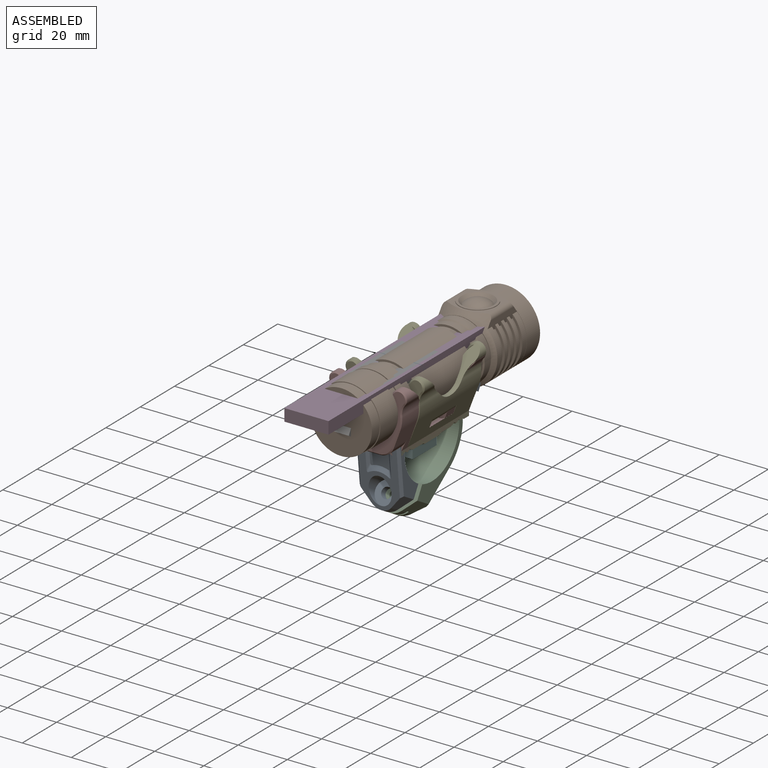
[diagram: assembled view]
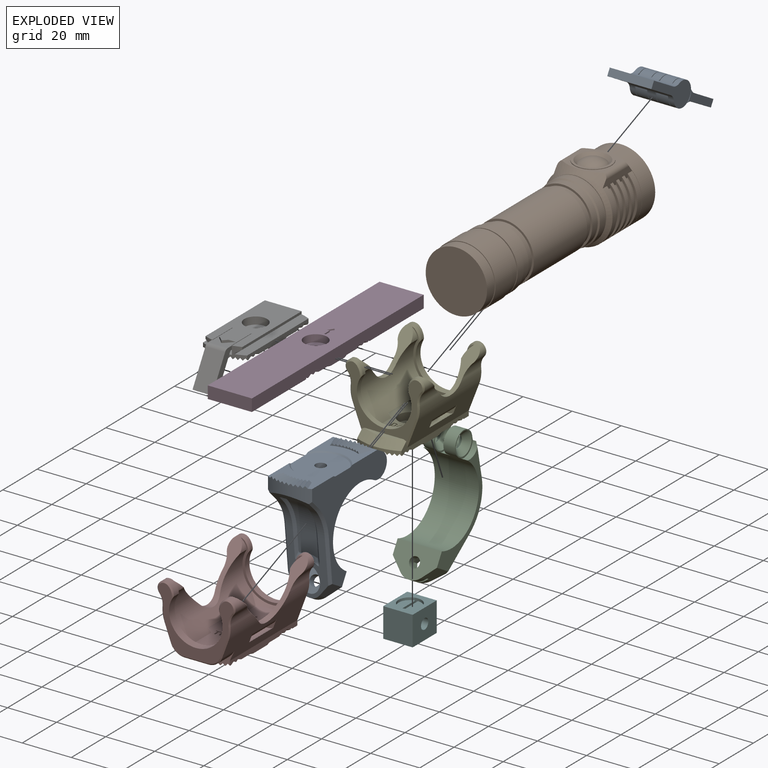
[diagram: exploded view]
GUIDED TOUR — FREECAD ASSEMBLY "bike-light-mount"

This assembly has 9 components, labeled P0..P8 below (a component is one placed body or linked part; the same part can appear more than once), held together by 0 modeled joints plus 30 derived contact edges. A joint is a constraint between two components; its type names the relative motion it leaves free:
  CONTACT — a derived adjacency edge — the two components touch in the source model (clearance under 2% of the assembly's diagonal); it is measured from the geometry, not a modeled constraint.
Axis/direction vectors are unit vectors and 'through' points are millimeter coordinates, both in the assembly's world frame.

MATES
  1. CONTACT "contact_0_1": P0 <-> P1, contact direction (0.000, 0.931, 0.364) through (4.00, -18.91, 6.86) mm (derived from contact, not a modeled constraint)
  2. CONTACT "contact_0_2": P0 <-> P2, contact direction (0.000, 1.000, 0.000) through (1.75, 7.95, 13.77) mm (derived from contact, not a modeled constraint)
  3. CONTACT "contact_0_3": P0 <-> P3, contact direction (0.000, -0.364, 0.931) through (-0.87, 9.79, 24.22) mm (derived from contact, not a modeled constraint)
  4. CONTACT "contact_0_4": P0 <-> P4, contact direction (0.000, 0.931, 0.364) through (-9.00, -15.10, 4.60) mm (derived from contact, not a modeled constraint)
  5. CONTACT "contact_0_6": P0 <-> P6, contact direction (0.000, -0.364, 0.931) through (4.33, -29.77, 24.22) mm (derived from contact, not a modeled constraint)
  6. CONTACT "contact_0_7": P0 <-> P7, contact direction (0.000, -1.000, 0.000) through (-8.97, -21.48, 11.72) mm (derived from contact, not a modeled constraint)
  7. CONTACT "contact_0_8": P0 <-> P8, contact direction (0.000, 0.931, 0.364) through (6.85, 14.72, 19.53) mm (derived from contact, not a modeled constraint)
  8. CONTACT "contact_1_2": P1 <-> P2, contact direction (0.000, -0.931, -0.364) through (-5.53, 18.06, 9.93) mm (derived from contact, not a modeled constraint)
  9. CONTACT "contact_1_3": P1 <-> P3, contact direction (0.000, -1.000, 0.000) through (4.46, -11.97, 29.09) mm (derived from contact, not a modeled constraint)
  10. CONTACT "contact_1_4": P1 <-> P4, contact direction (0.000, -0.931, -0.364) through (-9.86, -15.00, 24.11) mm (derived from contact, not a modeled constraint)
  11. CONTACT "contact_1_6": P1 <-> P6, contact direction (0.000, -1.000, 0.000) through (4.46, -11.97, 29.09) mm (derived from contact, not a modeled constraint)
  12. CONTACT "contact_1_7": P1 <-> P7, contact direction (0.000, -0.931, -0.364) through (10.64, -18.68, 25.22) mm (derived from contact, not a modeled constraint)
  13. CONTACT "contact_1_8": P1 <-> P8, contact direction (0.000, -0.931, -0.364) through (8.86, 28.84, 9.60) mm (derived from contact, not a modeled constraint)
  14. CONTACT "contact_2_3": P2 <-> P3, contact direction (0.000, -0.364, 0.931) through (-6.42, 9.44, 23.64) mm (derived from contact, not a modeled constraint)
  15. CONTACT "contact_2_4": P2 <-> P4, contact direction (0.000, -0.364, 0.931) through (9.00, 18.17, 0.05) mm (derived from contact, not a modeled constraint)
  16. CONTACT "contact_2_6": P2 <-> P6, contact direction (0.000, -0.364, 0.931) through (-2.23, 9.57, 23.64) mm (derived from contact, not a modeled constraint)
  17. CONTACT "contact_2_7": P2 <-> P7, contact direction (0.000, -1.000, 0.000) through (-9.00, 18.17, 0.05) mm (derived from contact, not a modeled constraint)
  18. CONTACT "contact_2_8": P2 <-> P8, contact direction (0.000, 0.000, 1.000) through (6.65, 15.13, 15.67) mm (derived from contact, not a modeled constraint)
  19. CONTACT "contact_3_4": P3 <-> P4, contact direction (1.000, 0.000, 0.000) through (9.14, -14.36, 23.68) mm (derived from contact, not a modeled constraint)
  20. CONTACT "contact_3_6": P3 <-> P6, contact direction (0.000, -1.000, 0.000) through (-9.00, 5.34, 25.12) mm (derived from contact, not a modeled constraint)
  21. CONTACT "contact_3_7": P3 <-> P7, contact direction (0.000, 0.364, -0.931) through (-9.14, -21.49, 24.36) mm (derived from contact, not a modeled constraint)
  22. CONTACT "contact_3_8": P3 <-> P8, contact direction (0.000, 1.000, 0.000) through (-6.42, 9.38, 23.62) mm (derived from contact, not a modeled constraint)
  23. CONTACT "contact_4_5": P4 <-> P5, contact direction (0.000, 0.000, -1.000) through (0.00, -4.65, 5.00) mm (derived from contact, not a modeled constraint)
  24. CONTACT "contact_4_6": P4 <-> P6, contact direction (-1.000, 0.000, 0.000) through (9.14, -14.36, 23.68) mm (derived from contact, not a modeled constraint)
  25. CONTACT "contact_4_7": P4 <-> P7, contact direction (0.000, -0.931, -0.364) through (-9.00, -4.36, -0.37) mm (derived from contact, not a modeled constraint)
  26. CONTACT "contact_4_8": P4 <-> P8, contact direction (0.000, 0.931, 0.364) through (10.12, 13.38, 22.09) mm (derived from contact, not a modeled constraint)
  27. CONTACT "contact_5_7": P5 <-> P7, contact direction (0.000, -0.364, 0.931) through (-4.65, -0.12, 5.00) mm (derived from contact, not a modeled constraint)
  28. CONTACT "contact_6_7": P6 <-> P7, contact direction (0.000, 0.364, -0.931) through (9.14, -21.49, 24.36) mm (derived from contact, not a modeled constraint)
  29. CONTACT "contact_6_8": P6 <-> P8, contact direction (0.000, 1.000, 0.000) through (1.26, 9.74, 23.65) mm (derived from contact, not a modeled constraint)
  30. CONTACT "contact_7_8": P7 <-> P8, contact direction (0.000, 0.931, 0.364) through (9.92, 14.10, 22.07) mm (derived from contact, not a modeled constraint)

ASSEMBLY ORDER
  1. P4 — the base component [order heuristic]
  2. P0 [order heuristic]
  3. P1 [order heuristic]
  4. P2 [order heuristic]
  5. P3 [order heuristic]
  6. P5 [order heuristic]
  7. P6 [order heuristic]
  8. P7 [order heuristic]
  9. P8 [order heuristic]
Order-tag legend:
  [order heuristic] — this assembly is geometrically interlocked (no collision-free removal order exists), so components are listed in mate-graph order; insertion feasibility is not verified.

Of the 9 components, 9 carry a construction recipe — the FreeCAD feature program (sketches with constraints, then the solid features that consume them) that regenerates the part from scratch, quoted from this document or from the linked companion document it references; the rest are supplied as boundary geometry only. The tour below walks the components in assembly order: each is shown spotlighted twice — in the assembled view, then in the exploded view, where a leader line traces a displaced component back to its assembled socket (components that stay in place when exploded have no leader line; saturated green if recipe-attached, orange if geometry-only; every other component desaturated gray) — followed by its recipe or geometry summary and the mates that hold it.
NOTE — document 2 of 2 of this assembly tour. The two overview renders and the header above are repeated from document 1; the component sections below continue where the previous document stopped.
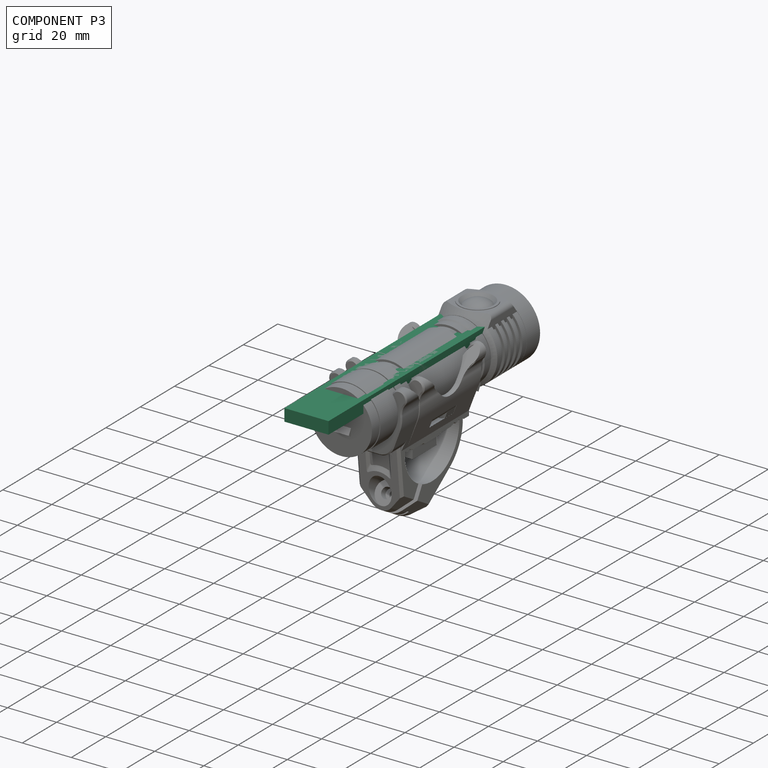
[diagram: component P3 — assembled]
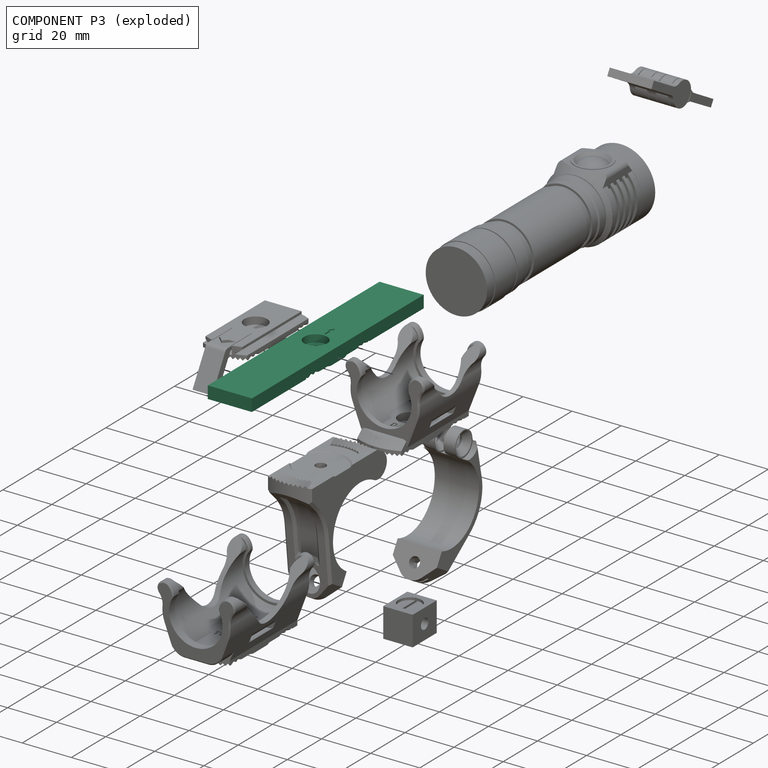
[diagram: component P3 — exploded]
COMPONENT P3 — recipe-attached ("Mounting plate - Bare", modeled in this document).
Held by: resting contact with P0 (derived edge); resting contact with P1 (derived edge); resting contact with P2 (derived edge); resting contact with P4 (derived edge); resting contact with P6 (derived edge); resting contact with P7 (derived edge); resting contact with P8 (derived edge).
Construction recipe (the document's own serialized feature program — sketch geometry with constraints, then the solid features built on it; lengths are millimeters unless a unit is written):

FEATURE [Sketcher::SketchObject] Sketch027
  MapMode = 5
  Support = -> [XY_Plane009]
  sketch-geometry (4):
    g0: LineSegment StartX=-9 StartY=-50 StartZ=0 EndX=9 EndY=-50 EndZ=0
    g1: LineSegment StartX=9 StartY=-50 StartZ=0 EndX=9 EndY=50 EndZ=0
    g2: LineSegment StartX=-9 StartY=50 StartZ=0 EndX=-9 EndY=-50 EndZ=0
    g3: LineSegment StartX=-9 StartY=50 StartZ=0 EndX=9 EndY=50 EndZ=0
  constraints (10):
    c: Coincident(g0,g1)
    c: Coincident(g2,g0)
    c: Horizontal(g0)
    c: Vertical(g2)
    c: Symmetric(g2,g1,g-2)
    c: DistanceX(g2,g1) = 18
    c: Symmetric(g0,g1,g-1)
    c: Coincident(g3,g2)
    c: Coincident(g3,g1)
    c: DistanceY(g1,g1) = 100
FEATURE [PartDesign::Pad] Pad006
  Direction = (1,1,1)
  Length = 5
  Length2 = 100
  Profile = -> Sketch027
  Type = 0
FEATURE [Sketcher::SketchObject] Sketch028
  MapMode = 5
  Placement = pos=(0,0,0) rot=(0.57735,0.57735,0.57735;2.0944rad)
  Support = -> [YZ_Plane009]
  expr: Constraints[12] = <<Dimensions>>.m4_through_hole_diameter / 2
  expr: Constraints[13] = <<Dimensions>>.m4_washer_slot_diameter / 2
  expr: Constraints[17] = <<Pad006>>.Length
  sketch-geometry (6):
    g0: LineSegment StartX=-2.125 StartY=-0.5 StartZ=0 EndX=-2.125 EndY=2 EndZ=0
    g1: LineSegment StartX=-2.125 StartY=2 StartZ=0 EndX=-4.65 EndY=2 EndZ=0
    g2: LineSegment StartX=-4.65 StartY=2 StartZ=0 EndX=-4.65 EndY=5 EndZ=0
    g3: LineSegment StartX=-4.65 StartY=5 StartZ=0 EndX=0 EndY=5 EndZ=0
    g4: LineSegment StartX=0 StartY=5 StartZ=0 EndX=0 EndY=-0.5 EndZ=0
    g5: LineSegment StartX=-2.125 StartY=-0.5 StartZ=0 EndX=0 EndY=-0.5 EndZ=0
  constraints (18):
    c: Vertical(g0)
    c: Coincident(g1,g0)
    c: Horizontal(g1)
    c: Coincident(g2,g1)
    c: Vertical(g2)
    c: Coincident(g3,g2)
    c: Horizontal(g3)
    c: Coincident(g4,g3)
    c: Vertical(g4)
    c: Coincident(g5,g0)
    c: Coincident(g5,g4)
    c: Horizontal(g5)
    c: DistanceX(g5,g5) = 2.125
    c: DistanceX(g3,g3) = 4.65
    c: DistanceY(g0,g0) = 2.5
    c: PointOnObject(g4,g-2)
    c: DistanceY(g4,g-1) = 0.5
    c: DistanceY(g-1,g3) = 5
FEATURE [Sketcher::SketchObject] Sketch029
  AttachmentOffset = pos=(0,0,-20.5) rot=(0,0,1;0rad)
  MapMode = 5
  Placement = pos=(0,20.5,4.6e-15) rot=(1,0,0;1.5708rad)
  Support = -> [XZ_Plane009]
  sketch-geometry (3):
    g0: LineSegment StartX=-0.875 StartY=0 StartZ=0 EndX=0.875 EndY=0 EndZ=0
    g1: LineSegment StartX=0.875 StartY=0 StartZ=0 EndX=-1e-16 EndY=0.875 EndZ=0
    g2: LineSegment StartX=-1e-16 StartY=0.875 StartZ=0 EndX=-0.875 EndY=0 EndZ=0
  constraints (8):
    c: PointOnObject(g0,g-1)
    c: Coincident(g1,g0)
    c: PointOnObject(g1,g-2)
    c: Coincident(g2,g1)
    c: Coincident(g2,g0)
    c: Symmetric(g0,g0,g-2)
    c: Perpendicular(g2,g1)
    c: DistanceX(g0,g0) = 1.75
FEATURE [Sketcher::SketchObject] Sketch030
  MapMode = 5
  Placement = pos=(0,0,0) rot=(0.57735,0.57735,0.57735;2.0944rad)
  Support = -> [YZ_Plane009]
  sketch-geometry (3):
    g0: LineSegment StartX=14.52 StartY=0.25 StartZ=0 EndX=14.27 EndY=0 EndZ=0
    g1: LineSegment StartX=14.52 StartY=0.25 StartZ=0 EndX=14.52 EndY=0 EndZ=0
    g2: LineSegment StartX=14.52 StartY=0 StartZ=0 EndX=14.27 EndY=0 EndZ=0
  constraints (9):
    c: PointOnObject(g0,g-1)
    c: Coincident(g1,g0)
    c: Vertical(g1)
    c: Coincident(g2,g1)
    c: Coincident(g2,g0)
    c: Horizontal(g2)
    c: Equal(g2,g1)
    c: DistanceY(g1,g1) = 0.25
    c: DistanceX(g-1,g0) = 14.52
FEATURE [Sketcher::SketchObject] Sketch033
  AttachmentOffset = pos=(0,0,5) rot=(0,0,1;0rad)
  MapMode = 5
  Placement = pos=(0,0,5) rot=(0,0,1;0rad)
  Support = -> [XY_Plane009]
  expr: Constraints[18] = <<Dimensions>>.m4_washer_slot_diameter / 2 + 1
  expr: .AttachmentOffset.Base.z = <<Pad006>>.Length
  sketch-geometry (7):
    g0: LineSegment StartX=-0.5 StartY=5.65 StartZ=0 EndX=-0.5 EndY=8.85778 EndZ=0
    g1: LineSegment StartX=-0.5 StartY=8.85778 StartZ=0 EndX=-1.5 EndY=8.85778 EndZ=0
    g2: LineSegment StartX=-1.5 StartY=8.85778 StartZ=0 EndX=0 EndY=11 EndZ=0
    g3: LineSegment StartX=0 StartY=11 StartZ=0 EndX=1.5 EndY=8.85778 EndZ=0
    g4: LineSegment StartX=1.5 StartY=8.85778 StartZ=0 EndX=0.5 EndY=8.85778 EndZ=0
    g5: LineSegment StartX=0.5 StartY=8.85778 StartZ=0 EndX=0.5 EndY=5.65 EndZ=0
    g6: LineSegment StartX=0.5 StartY=5.65 StartZ=0 EndX=-0.5 EndY=5.65 EndZ=0
  constraints (20):
    c: Vertical(g0)
    c: Coincident(g1,g0)
    c: Horizontal(g1)
    c: Coincident(g2,g1)
    c: PointOnObject(g2,g-2)
    c: Coincident(g3,g2)
    c: Coincident(g4,g3)
    c: Horizontal(g4)
    c: Coincident(g5,g4)
    c: Vertical(g5)
    c: Coincident(g6,g5)
    c: Coincident(g6,g0)
    c: Equal(g5,g0)
    c: Symmetric(g5,g0,g-2)
    c: Equal(g1,g4)
    c: Angle(g2,g3) = 1.22173
    c: DistanceX(g6,g6) = 1
    c: DistanceX(g1,g1) = 1
    c: DistanceY(g-1,g0) = 5.65
    c: DistanceY(g-1,g2) = 11
FEATURE [Sketcher::SketchObject] Sketch035
  ExternalGeometry = -> [Sketch027]
  MapMode = 5
  Support = -> [XY_Plane009]
  sketch-geometry (4):
    g0: ArcOfCircle CenterX=0 CenterY=0 CenterZ=0 NormalX=0 NormalY=0 NormalZ=1 AngleXU=0 Radius=9.875 StartAngle=0.424141 EndAngle=2.71745
    g1: ArcOfCircle CenterX=0 CenterY=0 CenterZ=0 NormalX=0 NormalY=0 NormalZ=1 AngleXU=0 Radius=9.875 StartAngle=3.56573 EndAngle=5.85904
    g2: LineSegment StartX=-9 StartY=4.06394 StartZ=0 EndX=-9 EndY=-4.06394 EndZ=0
    g3: LineSegment StartX=9 StartY=-4.06394 StartZ=0 EndX=9 EndY=4.06394 EndZ=0
  constraints (12):
    c: Coincident(g0,g-1)
    c: PointOnObject(g0,g-3)
    c: PointOnObject(g0,g-4)
    c: Coincident(g1,g0)
    c: PointOnObject(g1,g-3)
    c: PointOnObject(g1,g-4)
    c: Coincident(g2,g0)
    c: Coincident(g2,g1)
    c: Coincident(g3,g1)
    c: Coincident(g3,g0)
    c: Equal(g0,g1)
    c: Diameter(g1) = 19.75
FEATURE [PartDesign::Pad] Pad009
  BaseFeature = -> Pad006
  Direction = (1,1,1)
  Length = 0.5
  Length2 = 100
  Profile = -> Sketch035
  Refine = true
  Reversed = true
  Type = 0
FEATURE [PartDesign::Draft] Draft001
  Angle = 45
  Base = -> Pad009 [Face6,Face7]
  BaseFeature = -> Pad009
  NeutralPlane = -> Pad009 [Face8]
  Reversed = true
  SupportTransform = false
FEATURE [PartDesign::Groove] Groove003
  Angle = 360
  Axis = (-2e-16,3e-16,1)
  Base = (0,0,0)
  BaseFeature = -> Draft001
  Profile = -> Sketch028
  ReferenceAxis = -> Sketch028 [V_Axis]
  Reversed = true
FEATURE [PartDesign::Pocket] Pocket012
  BaseFeature = -> Groove003
  Length = 6
  Length2 = 100
  Profile = -> Sketch029
  Reversed = true
  Type = 0
FEATURE [PartDesign::PolarPattern] PolarPattern002
  Angle = 360
  Axis = -> Z_Axis009
  BaseFeature = -> Pocket012
  Occurrences = 72
  Originals = -> [Pocket012]
FEATURE [PartDesign::Groove] Groove004
  Angle = 360
  Axis = (-2e-16,3e-16,1)
  Base = (0,0,0)
  BaseFeature = -> PolarPattern002
  Profile = -> Sketch030
  ReferenceAxis = -> Sketch030 [V_Axis]
FEATURE [PartDesign::Pocket] Pocket013
  BaseFeature = -> Groove004
  Length = 0.5
  Length2 = 100
  Profile = -> Sketch033
  Type = 0
FEATURE [PartDesign::Body] Body006  label="Mounting plate - Bare"
  Group = -> [Sketch027,Pad006,Pad009,Draft001,Sketch028,Groove003,Sketch029,Pocket012,PolarPattern002,Sketch030,Groove004,Sketch033,Pocket013,Sketch035]
  Origin = -> Origin009
  Placement = pos=(0,-10.25,24.25) rot=(0,0,1;0rad)
  Tip = -> Pocket013
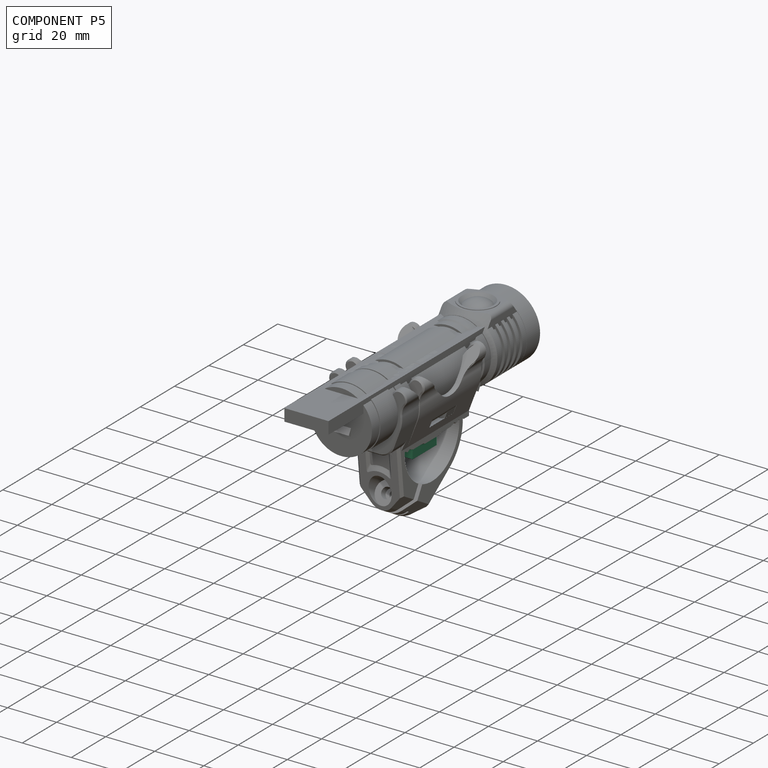
[diagram: component P5 — assembled]
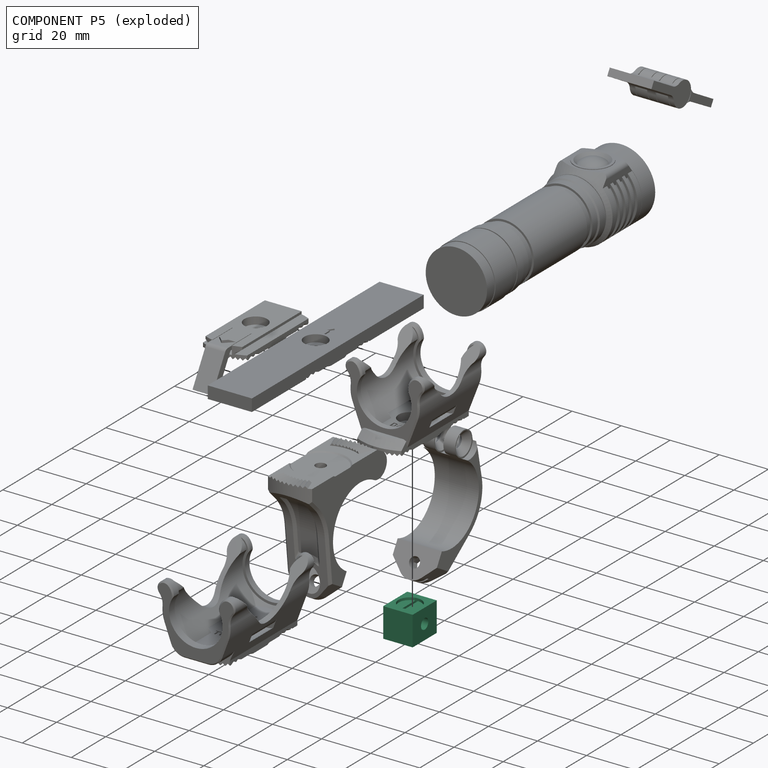
[diagram: component P5 — exploded]
COMPONENT P5 — recipe-attached ("Tolerance test", modeled in this document).
Held by: resting contact with P4 (derived edge); resting contact with P7 (derived edge).
Construction recipe (the document's own serialized feature program — sketch geometry with constraints, then the solid features built on it; lengths are millimeters unless a unit is written):

FEATURE [Sketcher::SketchObject] Sketch052
  MapMode = 5
  Support = -> [XY_Plane011]
  sketch-geometry (4):
    g0: LineSegment StartX=-6 StartY=7 StartZ=0 EndX=6 EndY=7 EndZ=0
    g1: LineSegment StartX=6 StartY=7 StartZ=0 EndX=6 EndY=-7 EndZ=0
    g2: LineSegment StartX=6 StartY=-7 StartZ=0 EndX=-6 EndY=-7 EndZ=0
    g3: LineSegment StartX=-6 StartY=-7 StartZ=0 EndX=-6 EndY=7 EndZ=0
  constraints (10):
    c: Coincident(g0,g1)
    c: Coincident(g1,g2)
    c: Coincident(g2,g3)
    c: Coincident(g3,g0)
    c: Horizontal(g2)
    c: Vertical(g3)
    c: Symmetric(g0,g0,g-2)
    c: Symmetric(g0,g1,g-1)
    c: DistanceX(g0,g0) = 12
    c: DistanceY(g3,g3) = 14
FEATURE [PartDesign::Pad] Pad011
  Direction = (1,1,1)
  Length = 12
  Length2 = 100
  Midplane = true
  Profile = -> Sketch052
  Type = 0
FEATURE [Sketcher::SketchObject] Sketch053
  MapMode = 5
  Placement = pos=(0,0,0) rot=(0.57735,0.57735,0.57735;2.0944rad)
  Support = -> [YZ_Plane011]
  expr: Constraints[11] = <<Dimensions>>.m4_washer_slot_diameter
  sketch-geometry (4):
    g0: ArcOfCircle CenterX=0 CenterY=0 CenterZ=0 NormalX=0 NormalY=0 NormalZ=1 AngleXU=0 Radius=4.65 StartAngle=3.14159 EndAngle=6.28319
    g1: LineSegment StartX=4.65 StartY=-1.1e-15 StartZ=0 EndX=4.65 EndY=10 EndZ=0
    g2: LineSegment StartX=4.65 StartY=10 StartZ=0 EndX=-4.65 EndY=10 EndZ=0
    g3: LineSegment StartX=-4.65 StartY=10 StartZ=0 EndX=-4.65 EndY=0 EndZ=0
  constraints (12):
    c: Coincident(g0,g-1)
    c: PointOnObject(g0,g-1)
    c: PointOnObject(g0,g-1)
    c: Coincident(g1,g2)
    c: Coincident(g2,g3)
    c: Horizontal(g2)
    c: Vertical(g1)
    c: Vertical(g3)
    c: Coincident(g1,g0)
    c: DistanceY(g3,g3) = 10
    c: Coincident(g3,g0)
    c: Diameter(g0) = 9.3
FEATURE [PartDesign::Pocket] Pocket024
  BaseFeature = -> Pad011
  Length = 1
  Length2 = 100
  Profile = -> Sketch053
  Type = 0
  expr: Length = <<Dimensions>>.m4_washer_slot_thickness
FEATURE [Sketcher::SketchObject] Sketch054
  AttachmentOffset = pos=(0,0,-1) rot=(0,0,1;0rad)
  MapMode = 5
  Placement = pos=(-1,2e-16,-2e-16) rot=(0.57735,0.57735,0.57735;2.0944rad)
  Support = -> [YZ_Plane011]
  expr: .AttachmentOffset.Base.z = -<<Dimensions>>.m4_washer_slot_thickness
  expr: Constraints[19] = <<Dimensions>>.m4_nut_slot_width
  sketch-geometry (7):
    g0: LineSegment StartX=0 StartY=4.04145 StartZ=0 EndX=-3.5 EndY=2.02073 EndZ=0
    g1: LineSegment StartX=-3.5 StartY=2.02073 StartZ=0 EndX=-3.5 EndY=-2.02073 EndZ=0
    g2: LineSegment StartX=-3.5 StartY=-2.02073 StartZ=0 EndX=-9e-16 EndY=-4.04145 EndZ=0
    g3: LineSegment StartX=-9e-16 StartY=-4.04145 StartZ=0 EndX=3.5 EndY=-2.02073 EndZ=0
    g4: LineSegment StartX=3.5 StartY=-2.02073 StartZ=0 EndX=3.5 EndY=2.02073 EndZ=0
    g5: LineSegment StartX=3.5 StartY=2.02073 StartZ=0 EndX=0 EndY=4.04145 EndZ=0
    g6: Circle [constr] CenterX=0 CenterY=0 CenterZ=0 NormalX=0 NormalY=0 NormalZ=1 AngleXU=0 Radius=4.04145
  constraints (16):
    c: Coincident(g0,g1)
    c: Coincident(g1,g2)
    c: Coincident(g2,g3)
    c: Coincident(g3,g4)
    c: Coincident(g4,g5)
    c: Coincident(g5,g0)
    c: Equal(g0, g1-g5) x5
    c: PointOnObject(g0,g6)
    c: PointOnObject(g1,g6)
    c: PointOnObject(g2,g6)
    c: PointOnObject(g3,g6)
    c: PointOnObject(g4,g6)
    c: PointOnObject(g5,g6)
    c: Coincident(g6,g-1)
    c: PointOnObject(g5,g-2)
    c: DistanceX(g0,g4) = 7
FEATURE [PartDesign::Pocket] Pocket025
  BaseFeature = -> Pocket024
  Length = 5
  Length2 = 100
  Profile = -> Sketch054
  Type = 1
FEATURE [Sketcher::SketchObject] Sketch055
  MapMode = 5
  Placement = pos=(0,0,0) rot=(0.57735,0.57735,0.57735;2.0944rad)
  Support = -> [YZ_Plane011]
  expr: Constraints[1] = <<Dimensions>>.m4_through_hole_diameter
  sketch-geometry (1):
    g0: Circle CenterX=0 CenterY=0 CenterZ=0 NormalX=0 NormalY=0 NormalZ=1 AngleXU=0 Radius=2.125
  constraints (2):
    c: Coincident(g0,g-1)
    c: Diameter(g0) = 4.25
FEATURE [PartDesign::Pocket] Pocket026
  BaseFeature = -> Pocket025
  Length = 5
  Length2 = 100
  Midplane = true
  Profile = -> Sketch055
  Type = 1
FEATURE [Sketcher::SketchObject] Sketch056
  AttachmentOffset = pos=(0,0,6) rot=(0,0,1;0rad)
  MapMode = 5
  Placement = pos=(0,0,6) rot=(0,0,1;0rad)
  Support = -> [XY_Plane011]
  expr: .AttachmentOffset.Base.z = <<Pad011>>.Length / 2
  expr: Constraints[1] = <<Dimensions>>.m4_washer_slot_diameter
  sketch-geometry (1):
    g0: Circle CenterX=0 CenterY=0 CenterZ=0 NormalX=0 NormalY=0 NormalZ=1 AngleXU=0 Radius=4.65
  constraints (2):
    c: Coincident(g0,g-1)
    c: Diameter(g0) = 9.3
FEATURE [PartDesign::Pocket] Pocket027
  BaseFeature = -> Pocket026
  Length = 1
  Length2 = 100
  Profile = -> Sketch056
  Type = 0
  expr: Length = <<Dimensions>>.m4_washer_slot_thickness
FEATURE [PartDesign::Body] Body008  label="Tolerance test"
  Group = -> [Sketch052,Pad011,Sketch053,Pocket024,Sketch054,Pocket025,Sketch055,Pocket026,Sketch056,Pocket027]
  Origin = -> Origin011
  Tip = -> Pocket027
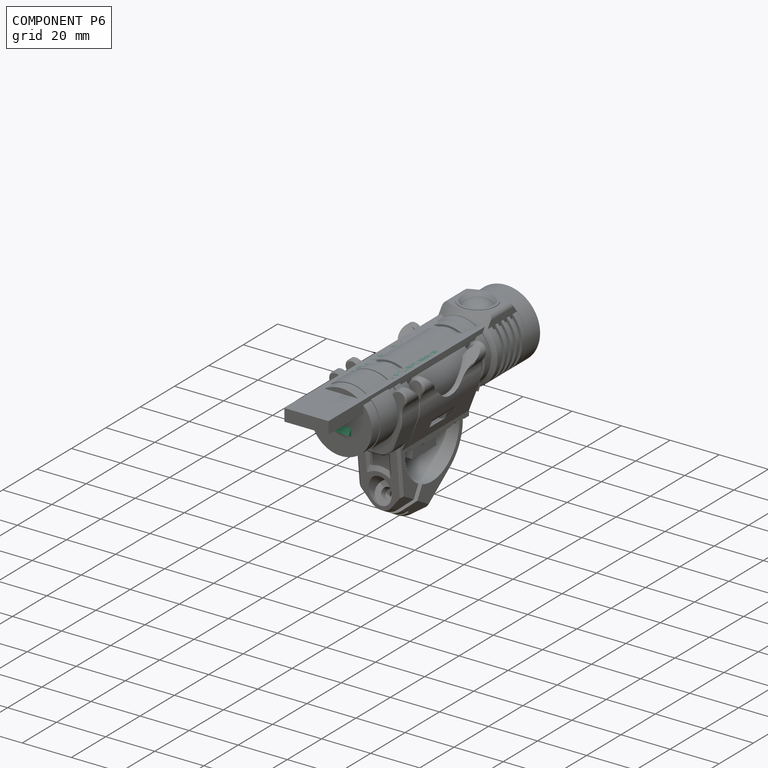
[diagram: component P6 — assembled]
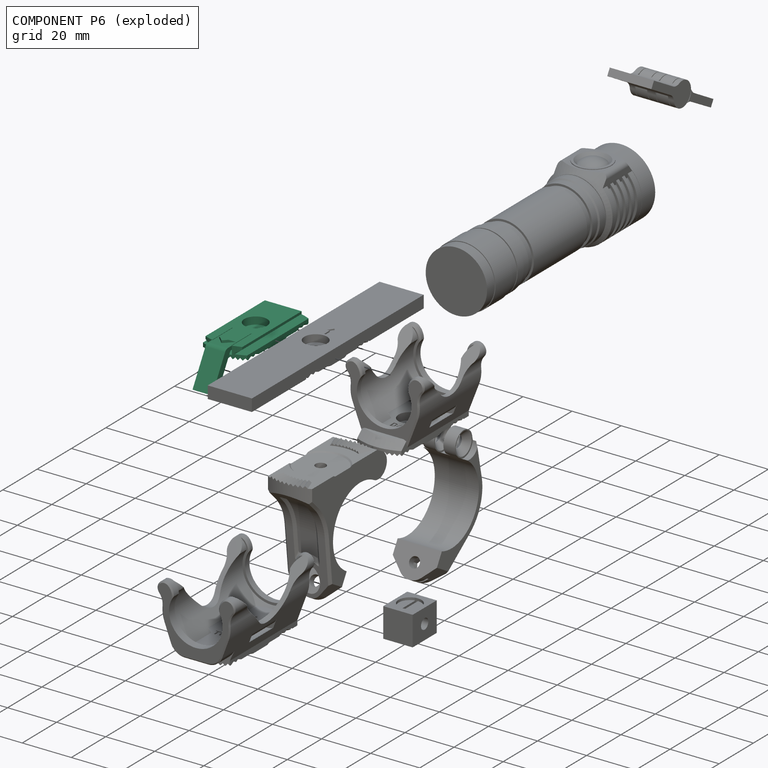
[diagram: component P6 — exploded]
COMPONENT P6 — recipe-attached ("QR Mounting plate (WIP)", modeled in this document).
Held by: resting contact with P0 (derived edge); resting contact with P1 (derived edge); resting contact with P2 (derived edge); resting contact with P3 (derived edge); resting contact with P4 (derived edge); resting contact with P7 (derived edge); resting contact with P8 (derived edge).
Construction recipe (the document's own serialized feature program — sketch geometry with constraints, then the solid features built on it; lengths are millimeters unless a unit is written):

FEATURE [Sketcher::SketchObject] Sketch057
  MapMode = 5
  Placement = pos=(0,0,0) rot=(1,0,0;1.5708rad)
  Support = -> [XZ_Plane012]
  sketch-geometry (12):
    g0: LineSegment StartX=-9 StartY=0 StartZ=0 EndX=9 EndY=0 EndZ=0
    g1: LineSegment StartX=-9 StartY=0 StartZ=0 EndX=-9 EndY=2 EndZ=0
    g2: LineSegment StartX=-9 StartY=2 StartZ=0 EndX=-5 EndY=2 EndZ=0
    g3: LineSegment StartX=-5 StartY=2 StartZ=0 EndX=-5 EndY=2.5 EndZ=0
    g4: LineSegment StartX=-5 StartY=2.5 StartZ=0 EndX=-7.5 EndY=4 EndZ=0
    g5: LineSegment StartX=-7.5 StartY=4 StartZ=0 EndX=-7.5 EndY=5 EndZ=0
    g6: LineSegment StartX=-7.5 StartY=5 StartZ=0 EndX=7.5 EndY=5 EndZ=0
    g7: LineSegment StartX=7.5 StartY=5 StartZ=0 EndX=7.5 EndY=4 EndZ=0
    g8: LineSegment StartX=7.5 StartY=4 StartZ=0 EndX=5 EndY=2.5 EndZ=0
    g9: LineSegment StartX=5 StartY=2.5 StartZ=0 EndX=5 EndY=2 EndZ=0
    g10: LineSegment StartX=5 StartY=2 StartZ=0 EndX=9 EndY=2 EndZ=0
    g11: LineSegment StartX=9 StartY=2 StartZ=0 EndX=9 EndY=0 EndZ=0
  constraints (35):
    c: PointOnObject(g0,g-1)
    c: Symmetric(g0,g0,g-2)
    c: Coincident(g1,g0)
    c: Vertical(g1)
    c: Coincident(g2,g1)
    c: Horizontal(g2)
    c: Coincident(g3,g2)
    c: Vertical(g3)
    c: Coincident(g4,g3)
    c: Coincident(g5,g4)
    c: Vertical(g5)
    c: Coincident(g6,g5)
    c: Coincident(g7,g6)
    c: Vertical(g7)
    c: Coincident(g8,g7)
    c: Coincident(g9,g8)
    c: Vertical(g9)
    c: Coincident(g10,g9)
    c: Horizontal(g10)
    c: Coincident(g11,g10)
    c: Coincident(g11,g0)
    c: Vertical(g11)
    c: DistanceY(g0,g5) = 5
    c: DistanceY(g1,g1) = 2
    c: Symmetric(g5,g6,g-2)
    c: DistanceX(g6,g6) = 15
    c: DistanceX(g0,g0) = 18
    c: Equal(g11,g1)
    c: Equal(g10,g2)
    c: Equal(g3,g9)
    c: Equal(g7,g5)
    c: DistanceY(g5,g5) = 1
    c: DistanceY(g3,g3) = 0.5
    c: DistanceX(g3,g8) = 10
    c: Angle(g4,g2) = 0.54042
FEATURE [Sketcher::SketchObject] Sketch058
  AttachmentOffset = pos=(0,0,-20.5) rot=(0,0,1;0rad)
  MapMode = 5
  Placement = pos=(0,20.5,4.6e-15) rot=(1,0,0;1.5708rad)
  Support = -> [XZ_Plane012]
  sketch-geometry (3):
    g0: LineSegment StartX=-0.875 StartY=0 StartZ=0 EndX=0.875 EndY=0 EndZ=0
    g1: LineSegment StartX=0.875 StartY=0 StartZ=0 EndX=-1e-16 EndY=0.875 EndZ=0
    g2: LineSegment StartX=-1e-16 StartY=0.875 StartZ=0 EndX=-0.875 EndY=0 EndZ=0
  constraints (8):
    c: PointOnObject(g0,g-1)
    c: Coincident(g1,g0)
    c: PointOnObject(g1,g-2)
    c: Coincident(g2,g1)
    c: Coincident(g2,g0)
    c: Symmetric(g0,g0,g-2)
    c: Perpendicular(g2,g1)
    c: DistanceX(g0,g0) = 1.75
FEATURE [Sketcher::SketchObject] Sketch059
  MapMode = 5
  Placement = pos=(0,0,0) rot=(0.57735,0.57735,0.57735;2.0944rad)
  Support = -> [YZ_Plane012]
  expr: Constraints[17] = <<Pad012>>.Length
  expr: Constraints[13] = <<Dimensions>>.m4_washer_slot_diameter / 2
  expr: Constraints[12] = <<Dimensions>>.m4_through_hole_diameter / 2
  sketch-geometry (6):
    g0: LineSegment StartX=-2.125 StartY=-0.5 StartZ=0 EndX=-2.125 EndY=2 EndZ=0
    g1: LineSegment StartX=-2.125 StartY=2 StartZ=0 EndX=-4.65 EndY=2 EndZ=0
    g2: LineSegment StartX=-4.65 StartY=2 StartZ=0 EndX=-4.65 EndY=50 EndZ=0
    g3: LineSegment StartX=-4.65 StartY=50 StartZ=0 EndX=0 EndY=50 EndZ=0
    g4: LineSegment StartX=0 StartY=50 StartZ=0 EndX=0 EndY=-0.5 EndZ=0
    g5: LineSegment StartX=-2.125 StartY=-0.5 StartZ=0 EndX=0 EndY=-0.5 EndZ=0
  constraints (18):
    c: Vertical(g0)
    c: Coincident(g1,g0)
    c: Horizontal(g1)
    c: Coincident(g2,g1)
    c: Vertical(g2)
    c: Coincident(g3,g2)
    c: Horizontal(g3)
    c: Coincident(g4,g3)
    c: Vertical(g4)
    c: Coincident(g5,g0)
    c: Coincident(g5,g4)
    c: Horizontal(g5)
    c: DistanceX(g5,g5) = 2.125
    c: DistanceX(g3,g3) = 4.65
    c: DistanceY(g0,g0) = 2.5
    c: PointOnObject(g4,g-2)
    c: DistanceY(g4,g-1) = 0.5
    c: DistanceY(g-1,g3) = 50
FEATURE [Sketcher::SketchObject] Sketch060
  MapMode = 5
  Placement = pos=(0,0,0) rot=(0.57735,0.57735,0.57735;2.0944rad)
  Support = -> [YZ_Plane012]
  sketch-geometry (3):
    g0: LineSegment StartX=14.52 StartY=0.25 StartZ=0 EndX=14.27 EndY=0 EndZ=0
    g1: LineSegment StartX=14.52 StartY=0.25 StartZ=0 EndX=14.52 EndY=0 EndZ=0
    g2: LineSegment StartX=14.52 StartY=0 StartZ=0 EndX=14.27 EndY=0 EndZ=0
  constraints (9):
    c: PointOnObject(g0,g-1)
    c: Coincident(g1,g0)
    c: Vertical(g1)
    c: Coincident(g2,g1)
    c: Coincident(g2,g0)
    c: Horizontal(g2)
    c: Equal(g2,g1)
    c: DistanceY(g1,g1) = 0.25
    c: DistanceX(g-1,g0) = 14.52
FEATURE [Sketcher::SketchObject] Sketch061
  AttachmentOffset = pos=(0,0,5) rot=(0,0,1;0rad)
  MapMode = 5
  Placement = pos=(0,0,5) rot=(0,0,1;0rad)
  Support = -> [XY_Plane012]
  expr: Constraints[18] = <<Dimensions>>.m4_washer_slot_diameter / 2 + 1
  sketch-geometry (7):
    g0: LineSegment StartX=-0.5 StartY=5.65 StartZ=0 EndX=-0.5 EndY=8.85778 EndZ=0
    g1: LineSegment StartX=-0.5 StartY=8.85778 StartZ=0 EndX=-1.5 EndY=8.85778 EndZ=0
    g2: LineSegment StartX=-1.5 StartY=8.85778 StartZ=0 EndX=0 EndY=11 EndZ=0
    g3: LineSegment StartX=0 StartY=11 StartZ=0 EndX=1.5 EndY=8.85778 EndZ=0
    g4: LineSegment StartX=1.5 StartY=8.85778 StartZ=0 EndX=0.5 EndY=8.85778 EndZ=0
    g5: LineSegment StartX=0.5 StartY=8.85778 StartZ=0 EndX=0.5 EndY=5.65 EndZ=0
    g6: LineSegment StartX=0.5 StartY=5.65 StartZ=0 EndX=-0.5 EndY=5.65 EndZ=0
  constraints (20):
    c: Vertical(g0)
    c: Coincident(g1,g0)
    c: Horizontal(g1)
    c: Coincident(g2,g1)
    c: PointOnObject(g2,g-2)
    c: Coincident(g3,g2)
    c: Coincident(g4,g3)
    c: Horizontal(g4)
    c: Coincident(g5,g4)
    c: Vertical(g5)
    c: Coincident(g6,g5)
    c: Coincident(g6,g0)
    c: Equal(g5,g0)
    c: Symmetric(g5,g0,g-2)
    c: Equal(g1,g4)
    c: Angle(g2,g3) = 1.22173
    c: DistanceX(g6,g6) = 1
    c: DistanceX(g1,g1) = 1
    c: DistanceY(g-1,g0) = 5.65
    c: DistanceY(g-1,g2) = 11
FEATURE [Sketcher::SketchObject] Sketch062
  MapMode = 5
  Support = -> [XY_Plane012]
  sketch-geometry (4):
    g0: ArcOfCircle CenterX=0 CenterY=0 CenterZ=0 NormalX=0 NormalY=0 NormalZ=1 AngleXU=0 Radius=9.875 StartAngle=0.424141 EndAngle=2.71745
    g1: ArcOfCircle CenterX=0 CenterY=0 CenterZ=0 NormalX=0 NormalY=0 NormalZ=1 AngleXU=0 Radius=9.875 StartAngle=3.56573 EndAngle=5.85904
    g2: LineSegment StartX=-9 StartY=4.06394 StartZ=0 EndX=-9 EndY=-4.06394 EndZ=0
    g3: LineSegment StartX=9 StartY=-4.06394 StartZ=0 EndX=9 EndY=4.06394 EndZ=0
  constraints (12):
    c: Coincident(g0,g-1)
    c: Coincident(g1,g0)
    c: Coincident(g2,g0)
    c: Coincident(g2,g1)
    c: Coincident(g3,g1)
    c: Coincident(g3,g0)
    c: Equal(g0,g1)
    c: Diameter(g1) = 19.75
    c: Vertical(g2)
    c: Vertical(g3)
    c: DistanceX(g0,g0) = 18
    c: Equal(g3,g2)
FEATURE [PartDesign::Pad] Pad012
  Direction = (1,1,1)
  Length = 50
  Length2 = 100
  Midplane = true
  Placement = pos=(0,0,0) rot=(1,0,0;1.5708rad)
  Profile = -> Sketch057
  Type = 0
FEATURE [PartDesign::Pad] Pad013
  BaseFeature = -> Pad012
  Direction = (1,1,1)
  Length = 0.5
  Length2 = 100
  Placement = pos=(0,0,0) rot=(1,0,0;1.5708rad)
  Profile = -> Sketch062
  Refine = true
  Reversed = true
  Type = 0
FEATURE [PartDesign::Draft] Draft004
  Angle = 45
  Base = -> Pad013 [Face16,Face5]
  BaseFeature = -> Pad013
  NeutralPlane = -> Pad013 [Face15]
  Placement = pos=(0,0,0) rot=(1,0,0;1.5708rad)
  Reversed = true
  SupportTransform = false
FEATURE [PartDesign::Groove] Groove005
  Angle = 360
  Axis = (-2e-16,3e-16,1)
  Base = (0,0,0)
  BaseFeature = -> Draft004
  Placement = pos=(0,0,0) rot=(1,0,0;1.5708rad)
  Profile = -> Sketch059
  ReferenceAxis = -> Sketch059 [V_Axis]
  Reversed = true
FEATURE [PartDesign::Pocket] Pocket029
  BaseFeature = -> Groove005
  Length = 6
  Length2 = 100
  Placement = pos=(0,0,0) rot=(1,0,0;1.5708rad)
  Profile = -> Sketch058
  Reversed = true
  Type = 0
FEATURE [PartDesign::PolarPattern] PolarPattern006
  Angle = 360
  Axis = -> Z_Axis012
  BaseFeature = -> Pocket029
  Occurrences = 72
  Originals = -> [Pocket029]
  Placement = pos=(0,0,0) rot=(1,0,0;1.5708rad)
FEATURE [PartDesign::Groove] Groove006
  Angle = 360
  Axis = (-2e-16,3e-16,1)
  Base = (0,0,0)
  BaseFeature = -> PolarPattern006
  Placement = pos=(0,0,0) rot=(1,0,0;1.5708rad)
  Profile = -> Sketch060
  ReferenceAxis = -> Sketch060 [V_Axis]
FEATURE [Sketcher::SketchObject] Sketch063
  MapMode = 5
  Support = -> [XY_Plane012]
  sketch-geometry (4):
    g0: ArcOfCircle CenterX=0 CenterY=0 CenterZ=0 NormalX=0 NormalY=0 NormalZ=1 AngleXU=0 Radius=20 StartAngle=1.10403 EndAngle=2.03756
    g1: LineSegment StartX=-9 StartY=17.8606 StartZ=0 EndX=-9 EndY=27.8606 EndZ=0
    g2: LineSegment StartX=-9 StartY=27.8606 StartZ=0 EndX=9 EndY=27.8606 EndZ=0
    g3: LineSegment StartX=9 StartY=27.8606 StartZ=0 EndX=9 EndY=17.8606 EndZ=0
  constraints (11):
    c: Coincident(g0,g-1)
    c: Coincident(g1,g0)
    c: Vertical(g1)
    c: Coincident(g2,g1)
    c: Coincident(g3,g2)
    c: Coincident(g3,g0)
    c: Symmetric(g1,g2,g-2)
    c: Equal(g3,g1)
    c: Radius(g0) = 20
    c: DistanceX(g2,g2) = 18
    c: DistanceY(g1,g1) = 10
FEATURE [PartDesign::Pocket] Pocket031
  BaseFeature = -> Groove006
  Length = 5
  Length2 = 100
  Placement = pos=(0,0,0) rot=(1,0,0;1.5708rad)
  Profile = -> Sketch063
  Reversed = true
  Type = 1
FEATURE [PartDesign::Mirrored] Mirrored002
  BaseFeature = -> Pocket031
  MirrorPlane = -> Sketch063 [H_Axis]
  Originals = -> [Pocket031]
  Placement = pos=(0,0,0) rot=(1,0,0;1.5708rad)
FEATURE [Sketcher::SketchObject] Sketch064
  AttachmentOffset = pos=(0,0,2) rot=(0,0,1;0rad)
  MapMode = 5
  Placement = pos=(0,0,2) rot=(0,0,1;0rad)
  Support = -> [XY_Plane012]
  sketch-geometry (4):
    g0: LineSegment StartX=-9 StartY=16 StartZ=0 EndX=-9 EndY=21 EndZ=0
    g1: LineSegment StartX=-9 StartY=21 StartZ=0 EndX=9 EndY=21 EndZ=0
    g2: LineSegment StartX=9 StartY=21 StartZ=0 EndX=9 EndY=16 EndZ=0
    g3: LineSegment StartX=-9 StartY=16 StartZ=0 EndX=9 EndY=16 EndZ=0
  constraints (11):
    c: Vertical(g0)
    c: Coincident(g1,g0)
    c: Coincident(g2,g1)
    c: Symmetric(g1,g0,g-2)
    c: Equal(g0,g2)
    c: DistanceX(g1,g1) = 18
    c: DistanceY(g0,g0) = 5
    c: Coincident(g3,g0)
    c: Coincident(g3,g2)
    c: DistanceY(g-1,g0) = 16
    c: Vertical(g2)
FEATURE [PartDesign::Pocket] Pocket032
  BaseFeature = -> Mirrored002
  Length = 5
  Length2 = 100
  Placement = pos=(0,0,0) rot=(1,0,0;1.5708rad)
  Profile = -> Sketch064
  Refine = true
  Reversed = true
  Type = 1
FEATURE [Sketcher::SketchObject] Sketch065
  MapMode = 5
  Placement = pos=(0,0,0) rot=(0.57735,0.57735,0.57735;2.0944rad)
  Support = -> [YZ_Plane012]
  sketch-geometry (4):
    g0: ArcOfCircle CenterX=-8.5 CenterY=3.5 CenterZ=0 NormalX=0 NormalY=0 NormalZ=1 AngleXU=0 Radius=0.5 StartAngle=4.84137 EndAngle=6.28319
    g1: LineSegment StartX=-8.43569 StartY=3.00415 StartZ=0 EndX=-20 EndY=1.50415 EndZ=0
    g2: LineSegment StartX=-20 StartY=1.50415 StartZ=0 EndX=-20 EndY=3.5 EndZ=0
    g3: LineSegment StartX=-8 StartY=3.5 StartZ=0 EndX=-20 EndY=3.5 EndZ=0
  constraints (13):
    c: Coincident(g1,g0)
    c: Coincident(g2,g1)
    c: Vertical(g2)
    c: Radius(g0) = 0.5
    c: Coincident(g3,g0)
    c: Coincident(g3,g2)
    c: Horizontal(g3)
    c: DistanceX(g2,g-1) = 20
    c: DistanceY(g-1,g0) = 3.5
    c: Tangent(g0,g1)
    c: DistanceX(g0,g-1) = 8
    c: DistanceY(g1,g0) = 1.5
    c: Perpendicular(g0,g3)
FEATURE [PartDesign::Pocket] Pocket033
  BaseFeature = -> Pocket032
  Length = 8
  Length2 = 100
  Midplane = true
  Placement = pos=(0,0,0) rot=(1,0,0;1.5708rad)
  Profile = -> Sketch065
  Type = 0
FEATURE [Sketcher::SketchObject] Sketch066
  AttachmentOffset = pos=(0,0,8) rot=(0,0,1;0rad)
  MapMode = 5
  Placement = pos=(0,-8,-1.8e-15) rot=(1,0,0;1.5708rad)
  Support = -> [XZ_Plane012]
  sketch-geometry (10):
    g0: LineSegment StartX=-4 StartY=5 StartZ=0 EndX=-4 EndY=3.5 EndZ=0
    g1: LineSegment StartX=-4 StartY=3.5 StartZ=0 EndX=-2.8 EndY=3.5 EndZ=0
    g2: LineSegment StartX=2.8 StartY=3.5 StartZ=0 EndX=4 EndY=3.5 EndZ=0
    g3: LineSegment StartX=4 StartY=3.5 StartZ=0 EndX=4 EndY=5 EndZ=0
    g4: LineSegment StartX=3.8 StartY=4.5 StartZ=0 EndX=2.8 EndY=3.5 EndZ=0
    g5: LineSegment StartX=-3.8 StartY=4.5 StartZ=0 EndX=-2.8 EndY=3.5 EndZ=0
    g6: LineSegment StartX=-4 StartY=5 StartZ=0 EndX=-3.8 EndY=5 EndZ=0
    g7: LineSegment StartX=-3.8 StartY=5 StartZ=0 EndX=-3.8 EndY=4.5 EndZ=0
    g8: LineSegment StartX=4 StartY=5 StartZ=0 EndX=3.8 EndY=5 EndZ=0
    g9: LineSegment StartX=3.8 StartY=5 StartZ=0 EndX=3.8 EndY=4.5 EndZ=0
  constraints (29):
    c: Symmetric(g0,g3,g-2)
    c: DistanceX(g0,g3) = 8
    c: Vertical(g0)
    c: Coincident(g1,g0)
    c: Horizontal(g1)
    c: Horizontal(g2)
    c: Coincident(g3,g2)
    c: Vertical(g3)
    c: Equal(g3,g0)
    c: DistanceY(g-1,g0) = 5
    c: DistanceY(g3,g3) = 1.5
    c: Coincident(g4,g2)
    c: Coincident(g1,g5)
    c: Angle(g2,g4) = 0.785398
    c: Angle(g5,g1) = 0.785398
    c: DistanceX(g4,g3) = 0.2
    c: Coincident(g6,g0)
    c: Horizontal(g6)
    c: Coincident(g7,g6)
    c: Coincident(g7,g5)
    c: Vertical(g7)
    c: Coincident(g8,g3)
    c: Horizontal(g8)
    c: Coincident(g9,g8)
    c: Coincident(g9,g4)
    c: Vertical(g9)
    c: Equal(g8,g6)
    c: Equal(g9,g7)
    c: DistanceY(g9,g9) = 0.5
FEATURE [PartDesign::Pocket] Pocket034
  BaseFeature = -> Pocket033
  Length = 5
  Length2 = 100
  Placement = pos=(0,0,0) rot=(1,0,0;1.5708rad)
  Profile = -> Sketch066
  Reversed = true
  Type = 1
FEATURE [Sketcher::SketchObject] Sketch067
  ExternalGeometry = -> [Pocket034]
  MapMode = 5
  Placement = pos=(0,0,0) rot=(0.57735,0.57735,0.57735;2.0944rad)
  Support = -> [YZ_Plane012]
  sketch-geometry (9):
    g0: LineSegment StartX=-21.8677 StartY=5 StartZ=0 EndX=-19.6357 EndY=5 EndZ=0
    g1: LineSegment StartX=-19.6357 StartY=5 StartZ=0 EndX=-19.6357 EndY=3.5 EndZ=0
    g2: LineSegment StartX=-28.5017 StartY=-10.4904 StartZ=0 EndX=-20.5687 EndY=3.25 EndZ=0
    g3: LineSegment StartX=-19.6357 StartY=3.5 StartZ=0 EndX=-20.1357 EndY=3.5 EndZ=0
    g4: ArcOfCircle CenterX=-20.1357 CenterY=3 CenterZ=0 NormalX=0 NormalY=0 NormalZ=1 AngleXU=0 Radius=0.5 StartAngle=1.5708 EndAngle=2.61799
    g5: LineSegment StartX=-23.5998 StartY=4.00001 StartZ=0 EndX=-31.0998 EndY=-8.99037 EndZ=0
    g6: ArcOfCircle CenterX=-21.8677 CenterY=3 CenterZ=0 NormalX=0 NormalY=0 NormalZ=1 AngleXU=0 Radius=2 StartAngle=1.5708 EndAngle=2.61799
    g7: LineSegment [constr] StartX=-23.5998 StartY=4.00001 StartZ=0 EndX=-21.0017 EndY=2.50001 EndZ=0
    g8: LineSegment StartX=-31.0998 StartY=-8.99037 StartZ=0 EndX=-28.5017 EndY=-10.4904 EndZ=0
  constraints (28):
    c: Coincident(g0,g1)
    c: Horizontal(g0)
    c: Vertical(g1)
    c: Coincident(g0,g-3)
    c: DistanceY(g1,g1) = 1.5
    c: Coincident(g3,g1)
    c: Horizontal(g3)
    c: DistanceX(g3,g3) = 0.5
    c: Coincident(g4,g3)
    c: Coincident(g4,g2)
    c: Tangent(g2,g4)
    c: Tangent(g4,g3)
    c: Radius(g4) = 0.5
    c: Angle(g-1,g2) = 1.0472
    c: Coincident(g6,g0)
    c: Coincident(g6,g5)
    c: Tangent(g6,g0)
    c: Tangent(g6,g5)
    c: Parallel(g5,g2)
    c: Coincident(g7,g5)
    c: PointOnObject(g7,g2)
    c: Perpendicular(g5,g7)
    c: Distance(g7) = 3
    c: Coincident(g8,g5)
    c: Coincident(g8,g2)
    c: Perpendicular(g5,g8)
    c: Distance(g5) = 15
    c: Radius(g6) = 2
FEATURE [PartDesign::Pad] Pad014
  BaseFeature = -> Pocket034
  Direction = (1,1,1)
  Length = 8
  Length2 = 100
  Midplane = true
  Placement = pos=(0,0,0) rot=(1,0,0;1.5708rad)
  Profile = -> Sketch067
  Refine = true
  Type = 0
FEATURE [Sketcher::SketchObject] Sketch068
  AttachmentOffset = pos=(0,0,5) rot=(0,0,1;0rad)
  MapMode = 5
  Placement = pos=(0,0,5) rot=(0,0,1;0rad)
  Support = -> [XY_Plane012]
  sketch-geometry (3):
    g0: LineSegment StartX=0 StartY=-20 StartZ=0 EndX=-3.5 EndY=-16.5 EndZ=0
    g1: LineSegment StartX=0 StartY=-20 StartZ=0 EndX=3.5 EndY=-16.5 EndZ=0
    g2: LineSegment StartX=3.5 StartY=-16.5 StartZ=0 EndX=-3.5 EndY=-16.5 EndZ=0
  constraints (8):
    c: PointOnObject(g0,g-2)
    c: Coincident(g1,g0)
    c: Coincident(g2,g1)
    c: Coincident(g0,g2)
    c: Perpendicular(g1,g0)
    c: Symmetric(g1,g0,g-2)
    c: DistanceX(g2,g2) = 7
    c: DistanceY(g0,g-1) = 20
FEATURE [PartDesign::Pad] Pad015
  BaseFeature = -> Pad014
  Direction = (1,1,1)
  Length = 1
  Length2 = 100
  Placement = pos=(0,0,0) rot=(1,0,0;1.5708rad)
  Profile = -> Sketch068
  Type = 0
FEATURE [PartDesign::Draft] Draft005
  Angle = 60
  Base = -> Pad015 [Face167]
  BaseFeature = -> Pad015
  NeutralPlane = -> Pad015 [Face123]
  Placement = pos=(0,0,0) rot=(1,0,0;1.5708rad)
  SupportTransform = false
FEATURE [PartDesign::Body] Body009  label="QR Mounting plate (WIP)"
  Group = -> [Sketch057,Pad012,Pad013,Draft004,Sketch059,Groove005,Sketch058,Pocket029,PolarPattern006,Sketch060,Groove006,Sketch061,Sketch062,Sketch063,Pocket031,Mirrored002,Sketch064,Pocket032,Sketch065,Pocket033,Sketch066,Pocket034,Sketch067,Pad014,Sketch068,Pad015,Draft005]
  Origin = -> Origin012
  Placement = pos=(0,-10.25,24.25) rot=(0,0,1;0rad)
  Tip = -> Draft005
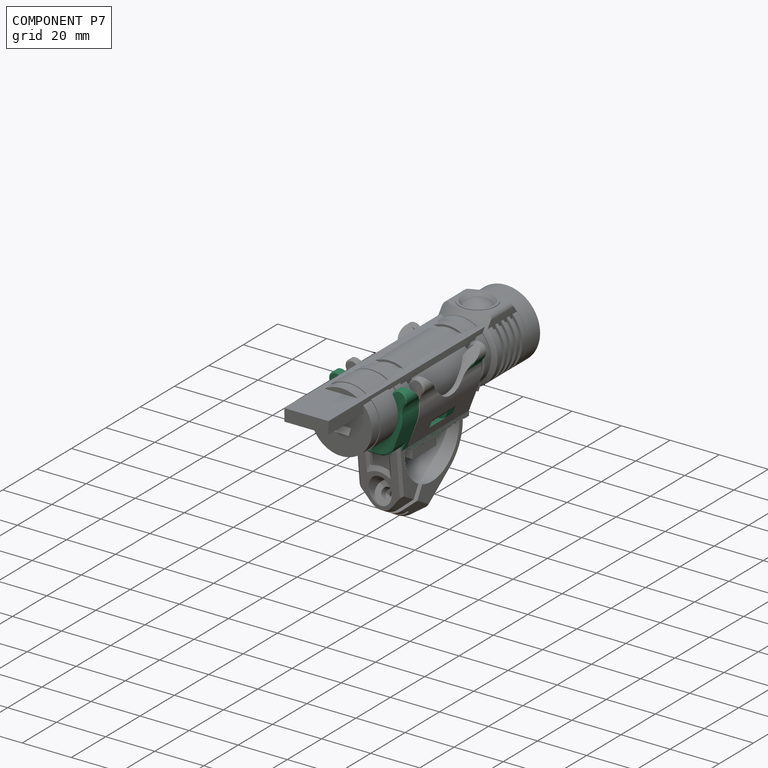
[diagram: component P7 — assembled]
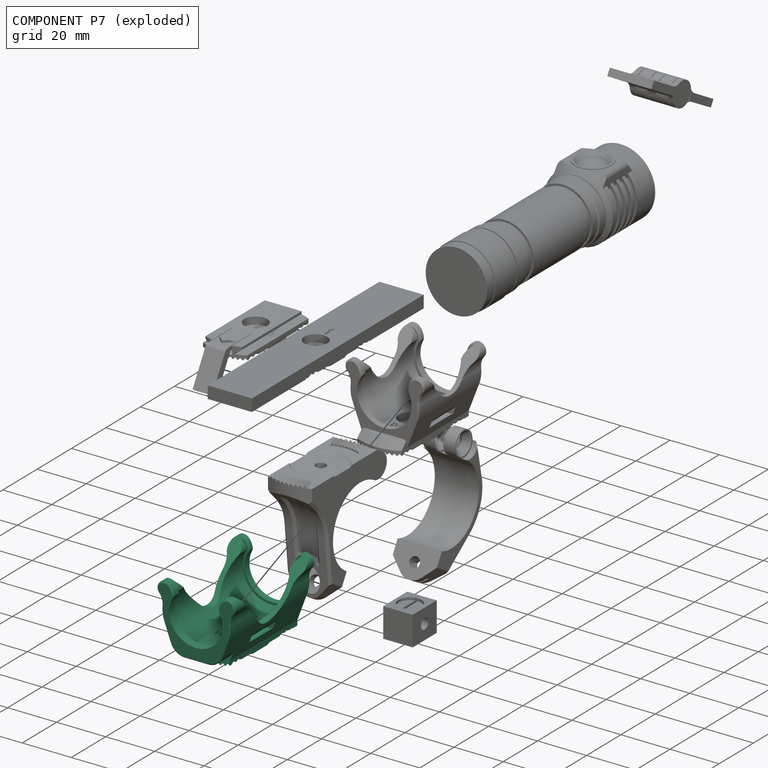
[diagram: component P7 — exploded]
COMPONENT P7 — recipe-attached ("Mounting plate - TC15", modeled in this document).
Held by: resting contact with P0 (derived edge); resting contact with P1 (derived edge); resting contact with P2 (derived edge); resting contact with P3 (derived edge); resting contact with P4 (derived edge); resting contact with P5 (derived edge); resting contact with P6 (derived edge); resting contact with P8 (derived edge).
Construction recipe (the document's own serialized feature program — sketch geometry with constraints, then the solid features built on it; lengths are millimeters unless a unit is written):

FEATURE [PartDesign::FeatureBase] BaseFeature001
  BaseFeature = -> Body006
FEATURE [Part::Part2DObjectPython] ShapeString001  # Draft 2D object (typed FeaturePython)
  AttachmentOffset = pos=(-4.75,-8.75,0) rot=(0,0,1;0rad)
  FontFile = <path>
  MapMode = 5
  Placement = pos=(-4.75,-8.75,5) rot=(0,0,1;0rad)
  Size = 3
  String = TC15
  Support = -> [BaseFeature001]
  Tracking = 0
FEATURE [PartDesign::CoordinateSystem] LCS_014  label="LCS_Mount_TC15_mount"
  AttacherType = Attacher::AttachEngine3D
  AttachmentOffset = pos=(0,0,-0.5) rot=(0,0,1;0rad)
  MapMode = 5
  Placement = pos=(0,0,-0.5) rot=(0,0,1;0rad)
  Support = -> [XY_Plane013]
FEATURE [PartDesign::CoordinateSystem] LCS_015  label="LCS_Mount_TC15_screw"
  AttacherType = Attacher::AttachEngine3D
  AttachmentOffset = pos=(0,0,2) rot=(0,0,1;0rad)
  MapMode = 5
  Placement = pos=(0,0,2) rot=(0,0,1;0rad)
  Support = -> [XY_Plane013]
FEATURE [Sketcher::SketchObject] Sketch073
  AttachmentOffset = pos=(0,0,-22) rot=(0,0,1;0rad)
  MapMode = 5
  Placement = pos=(0,22,4.9e-15) rot=(1,0,0;1.5708rad)
  Support = -> [XZ_Plane013]
  sketch-geometry (27):
    g0: LineSegment StartX=9 StartY=2 StartZ=0 EndX=13.0776 EndY=13.0309 EndZ=0
    g1: LineSegment StartX=-9 StartY=2 StartZ=0 EndX=-13.0776 EndY=13.0309 EndZ=0
    g2: ArcOfCircle CenterX=0 CenterY=18 CenterZ=0 NormalX=0 NormalY=0 NormalZ=1 AngleXU=0 Radius=11 StartAngle=3.66519 EndAngle=5.75959
    g3: ArcOfCircle CenterX=-0.649519 CenterY=17.625 CenterZ=0 NormalX=0 NormalY=0 NormalZ=1 AngleXU=0 Radius=10.25 StartAngle=2.55458 EndAngle=3.66519
    g4: ArcOfCircle CenterX=0.649519 CenterY=17.625 CenterZ=0 NormalX=0 NormalY=0 NormalZ=1 AngleXU=0 Radius=10.25 StartAngle=5.75959 EndAngle=6.87019
    g5: LineSegment [constr] StartX=0 StartY=0 StartZ=0 EndX=0 EndY=7 EndZ=0
    g6: ArcOfCircle CenterX=0.649519 CenterY=17.625 CenterZ=0 NormalX=0 NormalY=0 NormalZ=1 AngleXU=0 Radius=13.25 StartAngle=5.92911 EndAngle=6.36797
    g7: ArcOfCircle CenterX=-0.649519 CenterY=17.625 CenterZ=0 NormalX=0 NormalY=0 NormalZ=1 AngleXU=0 Radius=13.25 StartAngle=3.05681 EndAngle=3.49567
    g8: LineSegment [constr] StartX=-9.52628 StartY=12.5 StartZ=0 EndX=9.52628 EndY=12.5 EndZ=0
    g9: LineSegment [constr] StartX=-13.0776 StartY=13.0309 StartZ=0 EndX=-10.2637 EndY=14.0711 EndZ=0
    g10: LineSegment [constr] StartX=-9.18368 StartY=23.3022 StartZ=0 EndX=9.18368 EndY=23.3022 EndZ=0
    g11: LineSegment [constr] StartX=0 StartY=18 StartZ=0 EndX=-9.52628 EndY=12.5 EndZ=0
    g12: LineSegment StartX=-9 StartY=2 StartZ=0 EndX=-9 EndY=5 EndZ=0
    g13: LineSegment StartX=-9 StartY=5 StartZ=0 EndX=9 EndY=5 EndZ=0
    g14: LineSegment StartX=9 StartY=5 StartZ=0 EndX=9 EndY=2 EndZ=0
    g15: LineSegment [constr] StartX=-13.8519 StartY=18.7471 StartZ=0 EndX=-10.8627 EndY=18.493 EndZ=0
    g16: LineSegment [constr] StartX=13.8519 StartY=18.7471 StartZ=0 EndX=10.8627 EndY=18.493 EndZ=0
    g17: LineSegment [constr] StartX=-9.18368 StartY=23.3022 StartZ=0 EndX=0 EndY=18 EndZ=0
    g18: LineSegment [constr] StartX=-10.75 StartY=27.0836 StartZ=0 EndX=10.75 EndY=27.0836 EndZ=0
    g19: ArcOfCircle CenterX=-14.5314 CenterY=23.3022 CenterZ=0 NormalX=0 NormalY=0 NormalZ=1 AngleXU=0 Radius=5.34775 StartAngle=9e-16 EndAngle=0.785398
    g20: ArcOfCircle CenterX=-12.8713 CenterY=24.9623 CenterZ=0 NormalX=0 NormalY=0 NormalZ=1 AngleXU=0 Radius=3 StartAngle=0.785398 EndAngle=3.82847
    g21: LineSegment [constr] StartX=-10.75 StartY=27.0836 StartZ=0 EndX=-6.96857 EndY=23.3022 EndZ=0
    g22: ArcOfCircle CenterX=-19.8304 CenterY=19.2552 CenterZ=0 NormalX=0 NormalY=0 NormalZ=1 AngleXU=0 Radius=6 StartAngle=6.1984 EndAngle=6.97007
    g23: Circle [constr] CenterX=0 CenterY=18 CenterZ=0 NormalX=0 NormalY=0 NormalZ=1 AngleXU=0 Radius=11
    g24: ArcOfCircle CenterX=14.5314 CenterY=23.3022 CenterZ=0 NormalX=0 NormalY=0 NormalZ=1 AngleXU=0 Radius=5.34775 StartAngle=2.35619 EndAngle=3.14159
    g25: ArcOfCircle CenterX=12.8713 CenterY=24.9623 CenterZ=0 NormalX=0 NormalY=0 NormalZ=1 AngleXU=0 Radius=3 StartAngle=5.59631 EndAngle=8.63938
    g26: ArcOfCircle CenterX=19.8304 CenterY=19.2552 CenterZ=0 NormalX=0 NormalY=0 NormalZ=1 AngleXU=0 Radius=6 StartAngle=2.45471 EndAngle=3.22638
  constraints (84):
    c: Symmetric(g1,g0,g-2)
    c: DistanceX(g1,g0) = 18
    c: DistanceY(g-1,g1) = 2
    c: PointOnObject(g2,g-2)
    c: Radius(g2) = 11
    c: Coincident(g3,g2)
    c: Coincident(g4,g2)
    c: Tangent(g4,g2)
    c: Tangent(g2,g3)
    c: PointOnObject(g5,g2)
    c: Vertical(g5)
    c: DistanceY(g-1,g5) = 7
    c: Equal(g4,g3)
    c: Radius(g3) = 10.25
    c: Coincident(g6,g0)
    c: Coincident(g7,g1)
    c: Tangent(g7,g1)
    c: Tangent(g0,g6)
    c: Coincident(g8,g2)
    c: Coincident(g8,g2)
    c: Horizontal(g8)
    c: PointOnObject(g9,g1)
    c: PointOnObject(g9,g3)
    c: Perpendicular(g3,g9)
    c: Perpendicular(g1,g9)
    c: Horizontal(g10)
    c: Equal(g0,g1)
    c: Equal(g6,g7)
    c: Coincident(g11,g2)
    c: Coincident(g11,g2)
    c: Angle(g8,g11) = 0.523599
    c: Coincident(g12,g1)
    c: Vertical(g12)
    c: Coincident(g13,g12)
    c: Horizontal(g13)
    c: Coincident(g14,g13)
    c: Coincident(g14,g0)
    c: Vertical(g14)
    c: DistanceY(g-1,g12) = 5
    c: Coincident(g5,g-1)
    c: Coincident(g3,g10)
    c: Coincident(g15,g7)
    c: PointOnObject(g15,g3)
    c: Perpendicular(g3,g15)
    c: Distance(g15) = 3
    c: Coincident(g10,g4)
    c: Coincident(g16,g6)
    c: PointOnObject(g16,g4)
    c: Perpendicular(g4,g16)
    c: Equal(g16,g15)
    c: Coincident(g7,g3)
    c: Coincident(g17,g3)
    c: Coincident(g17,g2)
    c: Angle(g17,g10) = 0.523599
    c: DistanceX(g10,g10) = 18.3674
    c: Coincident(g19,g3)
    c: Perpendicular(g19,g10)
    c: Coincident(g20,g19)
    c: Tangent(g19,g20)
    c: Coincident(g18,g19)
    c: PointOnObject(g21,g10)
    c: Tangent(g21,g19) = 1.5708
    c: Angle(g21,g18) = 0.785398
    c: Coincident(g22,g20)
    c: Coincident(g22,g7)
    c: Tangent(g22,g7)
    c: Radius(g20) = 3
    c: DistanceX(g18,g18) = 21.5
    c: Coincident(g23,g2)
    c: PointOnObject(g2,g23)
    c: Coincident(g24,g4)
    c: Perpendicular(g24,g10)
    c: Symmetric(g18,g19,g-2)
    c: Coincident(g25,g24)
    c: Coincident(g26,g25)
    c: Coincident(g26,g6)
    c: Tangent(g26,g6)
    c: Tangent(g25,g24)
    c: Tangent(g26,g25)
    c: Equal(g25,g20)
    c: Coincident(g24,g18)
    c: Tangent(g22,g20)
    c: Radius(g22) = 6
    c: Equal(g22,g26)
FEATURE [PartDesign::Pad] Pad017
  BaseFeature = -> BaseFeature001
  Direction = (1,1,1)
  Length = 46.8
  Length2 = 100
  Profile = -> Sketch073
  Type = 0
FEATURE [PartDesign::Line] DatumLine008
  AttacherType = Attacher::AttachEngineLine
  Length = 20
  MapMode = 19
  Placement = pos=(9e-16,22,18) rot=(-0.186157,-0.694747,0.694747;3.50969rad)
  ResizeMode = 0
  Support = -> [Sketch073]
FEATURE [PartDesign::CoordinateSystem] LCS_013  label="LCS_Mount_TC15_front_clip"
  AttacherType = Attacher::AttachEngine3D
  MapMode = 11
  Placement = pos=(9e-16,22,18) rot=(0.774597,0.447214,-0.447214;1.82348rad)
  Support = -> [Sketch073]
FEATURE [Sketcher::SketchObject] Sketch074
  MapMode = 5
  Support = -> [XY_Plane013]
  sketch-geometry (4):
    g0: LineSegment StartX=-9 StartY=22 StartZ=0 EndX=9 EndY=22 EndZ=0
    g1: LineSegment StartX=9 StartY=22 StartZ=0 EndX=9 EndY=50 EndZ=0
    g2: LineSegment StartX=9 StartY=50 StartZ=0 EndX=-9 EndY=50 EndZ=0
    g3: LineSegment StartX=-9 StartY=50 StartZ=0 EndX=-9 EndY=22 EndZ=0
  constraints (9):
    c: Coincident(g0,g1)
    c: Coincident(g1,g2)
    c: Coincident(g2,g3)
    c: Coincident(g3,g0)
    c: Horizontal(g0)
    c: Vertical(g1)
    c: Vertical(g3)
    c: Symmetric(g1,g2,g-2)
    c: DistanceY(g-1,g2) = 50
FEATURE [Sketcher::SketchObject] Sketch075
  AttachmentOffset = pos=(0,0,2.6) rot=(0,0,1;0rad)
  ExternalGeometry = -> [Sketch073]
  MapMode = 2
  Placement = pos=(0,19.4,4.3e-15) rot=(1,0,0;1.5708rad)
  Support = -> [Sketch073]
  expr: Constraints[2] = <<Dimensions>>.m4_washer_slot_diameter + 1
  sketch-geometry (16):
    g0: LineSegment StartX=-5.15 StartY=5 StartZ=0 EndX=5.15 EndY=5 EndZ=0
    g1: ArcOfCircle CenterX=0 CenterY=18 CenterZ=0 NormalX=0 NormalY=0 NormalZ=1 AngleXU=0 Radius=12 StartAngle=3.66519 EndAngle=3.79614
    g2: ArcOfCircle CenterX=0 CenterY=18 CenterZ=0 NormalX=0 NormalY=0 NormalZ=1 AngleXU=0 Radius=12 StartAngle=5.62864 EndAngle=5.75959
    g3: LineSegment StartX=-9.51988 StartY=10.6944 StartZ=0 EndX=-5.15 EndY=5 EndZ=0
    g4: LineSegment StartX=9.51988 StartY=10.6944 StartZ=0 EndX=5.15 EndY=5 EndZ=0
    g5: ArcOfCircle CenterX=-0.649519 CenterY=17.625 CenterZ=0 NormalX=0 NormalY=0 NormalZ=1 AngleXU=0 Radius=11.25 StartAngle=2.58353 EndAngle=3.66519
    g6: ArcOfCircle CenterX=0.649519 CenterY=17.625 CenterZ=0 NormalX=0 NormalY=0 NormalZ=1 AngleXU=0 Radius=11.25 StartAngle=5.75959 EndAngle=6.84125
    g7: LineSegment [constr] StartX=-11.8995 StartY=17.625 StartZ=0 EndX=-10.8995 EndY=17.625 EndZ=0
    g8: ArcOfCircle CenterX=-14.5314 CenterY=23.3022 CenterZ=0 NormalX=0 NormalY=0 NormalZ=1 AngleXU=0 Radius=4.34775 StartAngle=0.0644784 EndAngle=0.785398
    g9: LineSegment StartX=-11.4571 StartY=26.3765 StartZ=0 EndX=-14.4571 EndY=29.3765 EndZ=0
    g10: LineSegment [constr] StartX=-11.4571 StartY=26.3765 StartZ=0 EndX=-10.75 EndY=27.0836 EndZ=0
    g11: ArcOfCircle CenterX=14.5314 CenterY=23.3022 CenterZ=0 NormalX=0 NormalY=0 NormalZ=1 AngleXU=0 Radius=4.34775 StartAngle=2.35619 EndAngle=3.07711
    g12: LineSegment [constr] StartX=10.75 StartY=27.0836 StartZ=0 EndX=11.4571 EndY=26.3765 EndZ=0
    g13: LineSegment StartX=11.4571 StartY=26.3765 StartZ=0 EndX=14.4571 EndY=29.3765 EndZ=0
    g14: LineSegment StartX=-14.4571 StartY=29.3765 StartZ=0 EndX=14.4571 EndY=29.3765 EndZ=0
    g15: LineSegment [constr] StartX=-10.3923 StartY=12 StartZ=0 EndX=-9.52628 EndY=12.5 EndZ=0
  constraints (45):
    c: PointOnObject(g0,g-3)
    c: Symmetric(g0,g0,g-2)
    c: DistanceX(g0,g0) = 10.3
    c: Coincident(g2,g1)
    c: Coincident(g3,g1)
    c: Coincident(g3,g0)
    c: Coincident(g4,g2)
    c: Coincident(g4,g0)
    c: Tangent(g2,g4)
    c: Tangent(g1,g3)
    c: Equal(g3,g4)
    c: Coincident(g1,g-5)
    c: Coincident(g5,g-4)
    c: Coincident(g5,g1)
    c: Coincident(g6,g-6)
    c: Coincident(g6,g2)
    c: Tangent(g2,g6)
    c: PointOnObject(g7,g5)
    c: PointOnObject(g7,g-4)
    c: Horizontal(g7)
    c: Perpendicular(g5,g7)
    c: DistanceX(g7,g7) = 1
    c: Coincident(g8,g-8)
    c: Coincident(g8,g5)
    c: Coincident(g9,g8)
    c: Tangent(g9,g8)
    c: Coincident(g10,g8)
    c: Coincident(g10,g-8)
    c: Perpendicular(g8,g10)
    c: Coincident(g11,g-7)
    c: Coincident(g11,g6)
    c: Coincident(g12,g-7)
    c: Coincident(g12,g11)
    c: Perpendicular(g11,g12)
    c: Coincident(g13,g11)
    c: Tangent(g13,g11)
    c: Coincident(g14,g9)
    c: Coincident(g14,g13)
    c: Horizontal(g14)
    c: DistanceY(g9,g9) = 3
    c: Coincident(g15,g1)
    c: Coincident(g15,g-5)
    c: Perpendicular(g5,g15)
    c: Equal(g10,g7)
    c: Equal(g12,g10)
FEATURE [Sketcher::SketchObject] Sketch076
  MapMode = 5
  Support = -> [XY_Plane013]
  sketch-geometry (4):
    g0: LineSegment StartX=-9 StartY=-24.8 StartZ=0 EndX=-9 EndY=-50 EndZ=0
    g1: LineSegment StartX=-9 StartY=-50 StartZ=0 EndX=9 EndY=-50 EndZ=0
    g2: LineSegment StartX=9 StartY=-50 StartZ=0 EndX=9 EndY=-24.8 EndZ=0
    g3: LineSegment StartX=-9 StartY=-24.8 StartZ=0 EndX=9 EndY=-24.8 EndZ=0
  constraints (11):
    c: Vertical(g0)
    c: Coincident(g1,g0)
    c: Coincident(g2,g1)
    c: Symmetric(g1,g0,g-2)
    c: DistanceX(g1,g1) = 18
    c: Equal(g0,g2)
    c: Coincident(g3,g0)
    c: Coincident(g3,g2)
    c: DistanceY(g0,g-1) = 24.8
    c: DistanceY(g0,g-1) = 50
    c: Vertical(g2)
FEATURE [Sketcher::SketchObject] Sketch077
  ExternalGeometry = -> [Sketch073]
  MapMode = 5
  Placement = pos=(0,0,0) rot=(0.57735,0.57735,0.57735;2.0944rad)
  Support = -> [YZ_Plane013]
  expr: Constraints[13] = 2.6mm - <<Chamfer011>>.Size
  expr: Constraints[10] = <<Pocket036>>.Length + <<Chamfer010>>.Size + <<Chamfer011>>.Size
  sketch-geometry (5):
    g0: LineSegment StartX=-21.5 StartY=27.9623 StartZ=0 EndX=-6.45687 EndY=12.9192 EndZ=0
    g1: LineSegment StartX=4.85687 StartY=12.9192 StartZ=0 EndX=19.9 EndY=27.9623 EndZ=0
    g2: LineSegment StartX=-21.5 StartY=27.9623 StartZ=0 EndX=19.9 EndY=27.9623 EndZ=0
    g3: ArcOfCircle CenterX=-0.799999 CenterY=18.576 CenterZ=0 NormalX=0 NormalY=0 NormalZ=1 AngleXU=0 Radius=8 StartAngle=3.92699 EndAngle=5.49779
    g4: LineSegment [constr] StartX=19.9 StartY=27.9623 StartZ=0 EndX=22 EndY=27.9623 EndZ=0
  constraints (15):
    c: Coincident(g2,g0)
    c: Coincident(g2,g1)
    c: Horizontal(g2)
    c: Coincident(g3,g0)
    c: Coincident(g3,g1)
    c: Tangent(g3,g1)
    c: Tangent(g3,g0)
    c: Radius(g3) = 8
    c: Perpendicular(g0,g1)
    c: Equal(g1,g0)
    c: DistanceX(g2,g2) = 41.4
    c: Coincident(g4,g1)
    c: Horizontal(g4)
    c: DistanceX(g4,g4) = 2.1
    c: Coincident(g4,g-3)
FEATURE [Sketcher::SketchObject] Sketch078
  AttachmentOffset = pos=(0,0,23.4) rot=(0,0,1;0rad)
  ExternalGeometry = -> [Sketch073]
  MapMode = 2
  Placement = pos=(0,-1.4,-3e-16) rot=(1,0,0;1.5708rad)
  Support = -> [Sketch073]
  expr: .AttachmentOffset.Base.z = <<Pad017>>.Length / 2
  sketch-geometry (8):
    g0: LineSegment StartX=-7.8775 StartY=5 StartZ=0 EndX=7.8775 EndY=5 EndZ=0
    g1: LineSegment StartX=-7.8775 StartY=6.5 StartZ=0 EndX=7.8775 EndY=6.5 EndZ=0
    g2: ArcOfCircle CenterX=7.8775 CenterY=10.5 CenterZ=0 NormalX=0 NormalY=0 NormalZ=1 AngleXU=0 Radius=5.5 StartAngle=4.71239 EndAngle=5.17266
    g3: ArcOfCircle CenterX=7.8775 CenterY=10.5 CenterZ=0 NormalX=0 NormalY=0 NormalZ=1 AngleXU=0 Radius=4 StartAngle=4.71239 EndAngle=5.92911
    g4: LineSegment StartX=10.3205 StartY=5.57236 StartZ=0 EndX=11.6294 EndY=9.11309 EndZ=0
    g5: ArcOfCircle CenterX=-7.8775 CenterY=10.5 CenterZ=0 NormalX=0 NormalY=0 NormalZ=1 AngleXU=0 Radius=5.5 StartAngle=4.25212 EndAngle=4.71239
    g6: ArcOfCircle CenterX=-7.8775 CenterY=10.5 CenterZ=0 NormalX=0 NormalY=0 NormalZ=1 AngleXU=0 Radius=4 StartAngle=3.49567 EndAngle=4.71239
    g7: LineSegment StartX=-11.6294 StartY=9.11309 StartZ=0 EndX=-10.3205 EndY=5.57236 EndZ=0
  constraints (25):
    c: PointOnObject(g0,g-4)
    c: Symmetric(g0,g0,g-2)
    c: Horizontal(g1)
    c: DistanceY(g0,g1) = 1.5
    c: Coincident(g2,g0)
    c: PointOnObject(g2,g-3)
    c: Coincident(g3,g2)
    c: Coincident(g3,g1)
    c: Tangent(g3,g1)
    c: Tangent(g2,g0)
    c: Coincident(g4,g2)
    c: Coincident(g4,g3)
    c: PointOnObject(g3,g-3)
    c: Tangent(g3,g-3)
    c: Coincident(g5,g0)
    c: Coincident(g6,g5)
    c: Coincident(g6,g1)
    c: Tangent(g5,g0)
    c: Tangent(g6,g1)
    c: Radius(g3) = 4
    c: PointOnObject(g6,g-5)
    c: Coincident(g7,g6)
    c: Coincident(g7,g5)
    c: PointOnObject(g5,g-5)
    c: Tangent(g6,g-5)
FEATURE [PartDesign::Pocket] Pocket039
  BaseFeature = -> Pad017
  Length = 5
  Length2 = 100
  Profile = -> Sketch074
  Refine = true
  Reversed = true
  Type = 1
FEATURE [PartDesign::Pocket] Pocket038
  BaseFeature = -> Pocket039
  Length = 5
  Length2 = 100
  Profile = -> Sketch076
  Refine = true
  Reversed = true
  Type = 1
FEATURE [Sketcher::SketchObject] Sketch079
  ExternalGeometry = -> [Sketch073]
  MapMode = 5
  Placement = pos=(0,0,0) rot=(0.57735,0.57735,0.57735;2.0944rad)
  Support = -> [YZ_Plane013]
  expr: Constraints[1] = <<Pocket036>>.Length
  sketch-geometry (7):
    g0: LineSegment [constr] StartX=19.4 StartY=6 StartZ=0 EndX=-20.6 EndY=6 EndZ=0
    g1: LineSegment StartX=-20.6 StartY=6 StartZ=0 EndX=-18.1 EndY=3.5 EndZ=0
    g2: LineSegment StartX=-18.1 StartY=3.5 StartZ=0 EndX=-20.6 EndY=3.5 EndZ=0
    g3: LineSegment StartX=-20.6 StartY=3.5 StartZ=0 EndX=-20.6 EndY=6 EndZ=0
    g4: LineSegment StartX=19.4 StartY=6 StartZ=0 EndX=16.9 EndY=3.5 EndZ=0
    g5: LineSegment StartX=16.9 StartY=3.5 StartZ=0 EndX=19.4 EndY=3.5 EndZ=0
    g6: LineSegment StartX=19.4 StartY=3.5 StartZ=0 EndX=19.4 EndY=6 EndZ=0
  constraints (20):
    c: Horizontal(g0)
    c: DistanceX(g0,g0) = 40
    c: Coincident(g2,g1)
    c: Horizontal(g2)
    c: Coincident(g3,g2)
    c: Coincident(g3,g1)
    c: Vertical(g3)
    c: Equal(g2,g3)
    c: DistanceY(g3,g3) = 2.5
    c: Coincident(g0,g1)
    c: Coincident(g4,g0)
    c: Coincident(g5,g4)
    c: Coincident(g6,g5)
    c: Coincident(g6,g4)
    c: Vertical(g6)
    c: Horizontal(g5)
    c: Equal(g5,g6)
    c: Equal(g6,g3)
    c: DistanceX(g4,g-3) = 2.6
    c: DistanceY(g4,g-3) = 1
FEATURE [Sketcher::SketchObject] Sketch080
  MapMode = 5
  Support = -> [XY_Plane013]
  sketch-geometry (4):
    g0: ArcOfCircle CenterX=0 CenterY=0 CenterZ=0 NormalX=0 NormalY=0 NormalZ=1 AngleXU=0 Radius=20 StartAngle=4.03726 EndAngle=5.38752
    g1: LineSegment StartX=-12.5 StartY=-15.6125 StartZ=0 EndX=-12.5 EndY=-35.6125 EndZ=0
    g2: LineSegment StartX=-12.5 StartY=-35.6125 StartZ=0 EndX=12.5 EndY=-35.6125 EndZ=0
    g3: LineSegment StartX=12.5 StartY=-35.6125 StartZ=0 EndX=12.5 EndY=-15.6125 EndZ=0
  constraints (11):
    c: Coincident(g0,g-1)
    c: Radius(g0) = 20
    c: Coincident(g1,g0)
    c: Vertical(g1)
    c: Coincident(g2,g1)
    c: Coincident(g3,g2)
    c: Coincident(g3,g0)
    c: Vertical(g3)
    c: Symmetric(g1,g2,g-2)
    c: DistanceX(g2,g2) = 25
    c: DistanceY(g1,g1) = 20
FEATURE [PartDesign::Pocket] Pocket042
  BaseFeature = -> Pocket038
  Length = 2
  Length2 = 100
  Profile = -> Sketch080
  Reversed = true
  Type = 0
FEATURE [PartDesign::Fillet] Fillet003
  Base = -> Pocket042 [Edge32,Edge2]
  BaseFeature = -> Pocket042
  Radius = 6
  SupportTransform = false
FEATURE [PartDesign::Pocket] Pocket036
  BaseFeature = -> Fillet003
  Length = 40
  Length2 = 100
  Profile = -> Sketch075
  Refine = true
  Reversed = true
  Type = 0
FEATURE [PartDesign::Chamfer] Chamfer010
  Angle = 45
  Base = -> Pocket036 [Edge110,Edge117,Edge104]
  BaseFeature = -> Pocket036
  ChamferType = 0
  FlipDirection = false
  Size = 0.9
  Size2 = 1
  SupportTransform = false
FEATURE [PartDesign::Chamfer] Chamfer011
  Angle = 45
  Base = -> Chamfer010 [Edge48,Edge7,Edge38,Edge37,Edge52,Edge27,Edge54,Edge58]
  BaseFeature = -> Chamfer010
  ChamferType = 0
  FlipDirection = false
  Size = 0.5
  Size2 = 1
  SupportTransform = false
FEATURE [PartDesign::Pocket] Pocket037
  BaseFeature = -> Chamfer011
  Length = 5
  Length2 = 100
  Midplane = true
  Profile = -> Sketch077
  Type = 1
FEATURE [PartDesign::Pocket] Pocket040
  BaseFeature = -> Pocket037
  Length = 14
  Length2 = 100
  Midplane = true
  Profile = -> Sketch078
  Refine = true
  Type = 0
FEATURE [PartDesign::Revolution] Revolution003
  Angle = 105
  Axis = (0,-1,-3e-16)
  Base = (9e-16,22,18)
  BaseFeature = -> Pocket040
  Midplane = true
  Profile = -> Sketch079
  ReferenceAxis = -> DatumLine008
FEATURE [PartDesign::Pocket] Pocket041
  BaseFeature = -> Revolution003
  Length = 0.5
  Length2 = 100
  Profile = -> ShapeString001
  Type = 0
FEATURE [PartDesign::Body] Body010  label="Mounting plate - TC15"
  BaseFeature = -> Body006
  Group = -> [BaseFeature001,Sketch073,Pad017,Sketch074,Pocket039,Sketch076,Pocket038,Pocket042,Fillet003,Pocket036,Chamfer010,Chamfer011,Sketch078,Sketch077,Sketch075,Pocket037,Pocket040,DatumLine008,Sketch079,Revolution003,Pocket041,LCS_014,LCS_015,LCS_013,ShapeString001,Sketch080]
  Origin = -> Origin013
  Tip = -> Pocket041
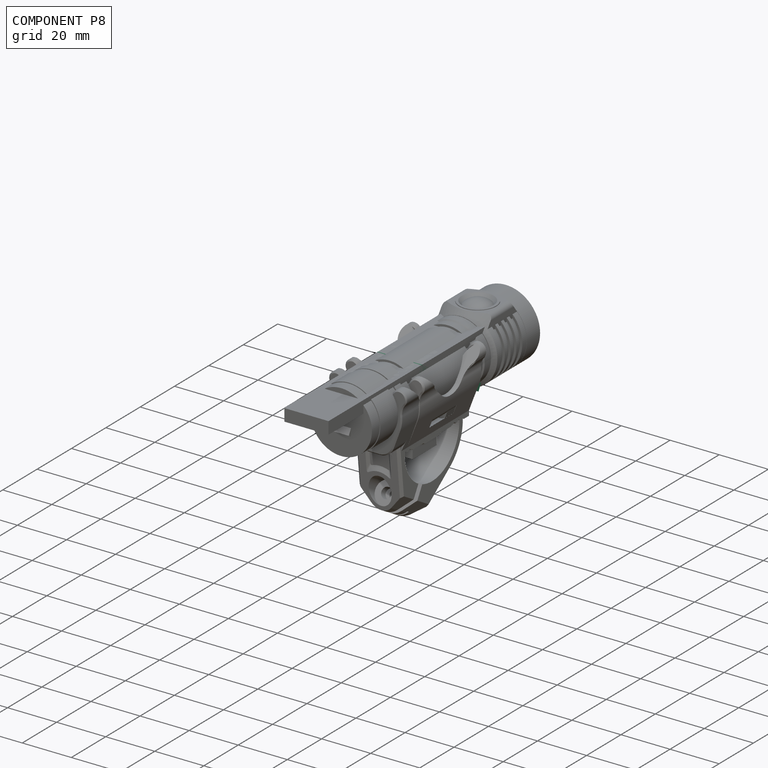
[diagram: component P8 — assembled]
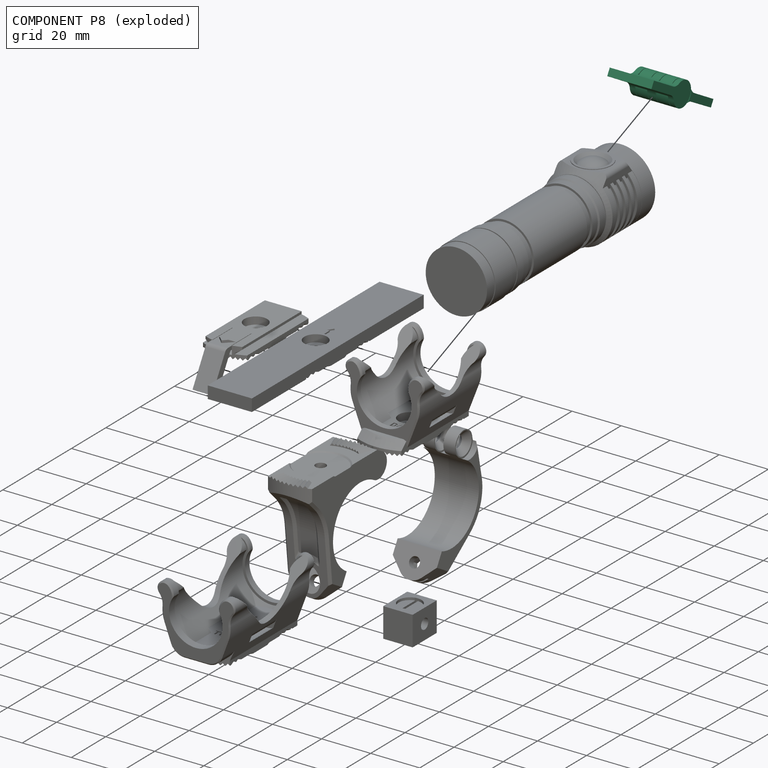
[diagram: component P8 — exploded]
COMPONENT P8 — recipe-attached ("Hinge test", modeled in this document).
Held by: resting contact with P0 (derived edge); resting contact with P1 (derived edge); resting contact with P2 (derived edge); resting contact with P3 (derived edge); resting contact with P4 (derived edge); resting contact with P6 (derived edge); resting contact with P7 (derived edge).
Construction recipe (the document's own serialized feature program — sketch geometry with constraints, then the solid features built on it; lengths are millimeters unless a unit is written):

FEATURE [Sketcher::SketchObject] Sketch003
  MapMode = 5
  Support = -> [XY_Plane002]
  sketch-geometry (6):
    g0: ArcOfCircle CenterX=0 CenterY=0 CenterZ=0 NormalX=0 NormalY=0 NormalZ=1 AngleXU=0 Radius=5 StartAngle=3.79906 EndAngle=8.76731
    g1: LineSegment StartX=-20 StartY=-1.5 StartZ=0 EndX=-20 EndY=1.5 EndZ=0
    g2: ArcOfCircle CenterX=-7.1239 CenterY=-5.5 CenterZ=0 NormalX=0 NormalY=0 NormalZ=1 AngleXU=0 Radius=4 StartAngle=0.657459 EndAngle=1.5708
    g3: ArcOfCircle CenterX=-7.1239 CenterY=5.5 CenterZ=0 NormalX=0 NormalY=0 NormalZ=1 AngleXU=0 Radius=4 StartAngle=4.71239 EndAngle=5.62573
    g4: LineSegment StartX=-7.1239 StartY=1.5 StartZ=0 EndX=-20 EndY=1.5 EndZ=0
    g5: LineSegment StartX=-20 StartY=-1.5 StartZ=0 EndX=-7.1239 EndY=-1.5 EndZ=0
  constraints (19):
    c: Coincident(g0,g-1)
    c: Radius(g0) = 5
    c: Symmetric(g1,g1,g-1)
    c: DistanceY(g1,g1) = 3
    c: DistanceX(g1,g0) = 20
    c: Coincident(g2,g0)
    c: Coincident(g3,g0)
    c: Tangent(g3,g0)
    c: Tangent(g0,g2)
    c: Equal(g3,g2)
    c: Coincident(g4,g3)
    c: Coincident(g4,g1)
    c: Coincident(g5,g1)
    c: Coincident(g5,g2)
    c: Horizontal(g5)
    c: Horizontal(g4)
    c: Tangent(g3,g4)
    c: Tangent(g2,g5)
    c: Radius(g3) = 4
FEATURE [PartDesign::Pad] Pad001
  Direction = (1,1,1)
  Length = 18
  Length2 = 100
  Midplane = true
  Profile = -> Sketch003
  Type = 0
FEATURE [Sketcher::SketchObject] Sketch005
  AttachmentOffset = pos=(0,0,4.25) rot=(0,0,1;0rad)
  MapMode = 5
  Placement = pos=(0,0,4.25) rot=(0,0,1;0rad)
  Support = -> [XY_Plane002]
  sketch-geometry (2):
    g0: Circle CenterX=0 CenterY=0 CenterZ=0 NormalX=0 NormalY=0 NormalZ=1 AngleXU=0 Radius=5.5
    g1: Circle CenterX=0 CenterY=0 CenterZ=0 NormalX=0 NormalY=0 NormalZ=1 AngleXU=0 Radius=2
  constraints (4):
    c: Coincident(g0,g-1)
    c: Coincident(g1,g0)
    c: Radius(g1) = 2
    c: Radius(g0) = 5.5
FEATURE [PartDesign::Pocket] Pocket
  BaseFeature = -> Pad001
  Length = 5.2
  Length2 = 100
  Midplane = true
  Profile = -> Sketch005
  Type = 0
FEATURE [PartDesign::Mirrored] Mirrored
  BaseFeature = -> Pocket
  MirrorPlane = -> XY_Plane002
  Originals = -> [Pocket]
FEATURE [PartDesign::Chamfer] Chamfer
  Angle = 45
  Base = -> Mirrored [Edge45,Edge35,Edge30,Edge40]
  BaseFeature = -> Mirrored
  ChamferType = 0
  FlipDirection = false
  Size = 2.5
  Size2 = 1
  SupportTransform = false
FEATURE [PartDesign::Body] Body002
  Group = -> [Sketch003,Pad001,Sketch005,Pocket,Mirrored,Chamfer]
  Origin = -> Origin002
  Tip = -> Chamfer
FEATURE [Sketcher::SketchObject] Sketch006
  MapMode = 5
  Support = -> [XY_Plane003]
  sketch-geometry (7):
    g0: LineSegment StartX=20 StartY=-1.5 StartZ=0 EndX=20 EndY=1.5 EndZ=0
    g1: ArcOfCircle CenterX=0 CenterY=0 CenterZ=0 NormalX=0 NormalY=0 NormalZ=1 AngleXU=0 Radius=5 StartAngle=0.657468 EndAngle=5.62572
    g2: Circle CenterX=0 CenterY=0 CenterZ=0 NormalX=0 NormalY=0 NormalZ=1 AngleXU=0 Radius=2.5
    g3: ArcOfCircle CenterX=7.1239 CenterY=-5.5 CenterZ=0 NormalX=0 NormalY=0 NormalZ=1 AngleXU=0 Radius=4 StartAngle=1.5708 EndAngle=2.48413
    g4: ArcOfCircle CenterX=7.1239 CenterY=5.5 CenterZ=0 NormalX=0 NormalY=0 NormalZ=1 AngleXU=0 Radius=4 StartAngle=3.79905 EndAngle=4.71239
    g5: LineSegment StartX=7.1239 StartY=-1.5 StartZ=0 EndX=20 EndY=-1.5 EndZ=0
    g6: LineSegment StartX=20 StartY=1.5 StartZ=0 EndX=7.1239 EndY=1.5 EndZ=0
  constraints (21):
    c: DistanceY(g0,g0) = 3
    c: Symmetric(g0,g0,g-1)
    c: Coincident(g1,g-1)
    c: Coincident(g2,g1)
    c: Radius(g2) = 2.5
    c: Radius(g1) = 5
    c: DistanceX(g1,g0) = 20
    c: Coincident(g3,g1)
    c: Coincident(g4,g1)
    c: Tangent(g1,g4)
    c: Tangent(g3,g1)
    c: Coincident(g5,g3)
    c: Coincident(g5,g0)
    c: Coincident(g6,g0)
    c: Coincident(g6,g4)
    c: Tangent(g6,g4)
    c: Tangent(g3,g5)
    c: Horizontal(g5)
    c: Horizontal(g6)
    c: Equal(g4,g3)
    c: Radius(g4) = 4
FEATURE [PartDesign::Pad] Pad002
  Direction = (1,1,1)
  Length = 18
  Length2 = 100
  Midplane = true
  Profile = -> Sketch006
  Type = 0
FEATURE [Sketcher::SketchObject] Sketch007
  MapMode = 5
  Support = -> [XY_Plane003]
  sketch-geometry (1):
    g0: Circle CenterX=0 CenterY=0 CenterZ=0 NormalX=0 NormalY=0 NormalZ=1 AngleXU=0 Radius=5.5
  constraints (2):
    c: Coincident(g0,g-1)
    c: Radius(g0) = 5.5
FEATURE [PartDesign::Pocket] Pocket001
  BaseFeature = -> Pad002
  Length = 3.7
  Length2 = 100
  Midplane = true
  Profile = -> Sketch007
  Type = 0
FEATURE [Sketcher::SketchObject] Sketch008
  AttachmentOffset = pos=(0,0,6.65) rot=(0,0,1;0rad)
  MapMode = 5
  Placement = pos=(0,0,6.65) rot=(0,0,1;0rad)
  Support = -> [XY_Plane003]
  sketch-geometry (1):
    g0: Circle CenterX=0 CenterY=0 CenterZ=0 NormalX=0 NormalY=0 NormalZ=1 AngleXU=0 Radius=5.25
  constraints (2):
    c: Coincident(g0,g-1)
    c: Radius(g0) = 5.25
FEATURE [PartDesign::Pocket] Pocket002
  BaseFeature = -> Pocket001
  Length = 5
  Length2 = 100
  Profile = -> Sketch008
  Reversed = true
  Type = 1
FEATURE [PartDesign::Mirrored] Mirrored001
  BaseFeature = -> Pocket002
  MirrorPlane = -> XY_Plane003
  Originals = -> [Pocket002]
FEATURE [PartDesign::Chamfer] Chamfer001
  Angle = 45
  Base = -> Mirrored001 [Edge32,Edge38,Edge50,Edge44]
  BaseFeature = -> Mirrored001
  ChamferType = 0
  FlipDirection = false
  Size = 2.3
  Size2 = 1
  SupportTransform = false
FEATURE [PartDesign::Body] Body003
  Group = -> [Sketch006,Pad002,Sketch007,Pocket001,Sketch008,Pocket002,Mirrored001,Chamfer001]
  Origin = -> Origin003
  Tip = -> Chamfer001
PROVENANCE & LICENSES
Assembly and component geometry: a FreeCAD (.FCStd) document from a public repository crawl; components, placements and joints were extracted with FreeCAD and each solid tessellated.
Construction recipes: the document's own serialized feature recipes (and, for linked parts, the recipes of companion documents from the same project).
License: as declared in the source repository (recorded in the dataset sidecar).
Joints: native FreeCAD joints and A2plus constraints are mapped to standard mate types; edges marked 'derived from contact' connect touching components and are measured from the geometry, not modeled.
Verification: 9 of this assembly's 9 components carry a construction recipe (9 from this document itself); the rest are geometry-only. Every component's tessellation passed the extraction mesh gates (mesh-volume checksum against the B-rep where available, bounding-box inflation <= 2%).
Renders: orthographic iso camera (az 35 / el 25); the floor grid conveys scale (grid pitch printed in each image; no ruler). In the exploded view each component is displaced by its stored offset vector: the offsets alone carry the explosion direction (mate normal/axis signs are not orientation cues and do not encode it), and separation distances are assigned per mate-chain, not proportionally to assembly-order depth.
